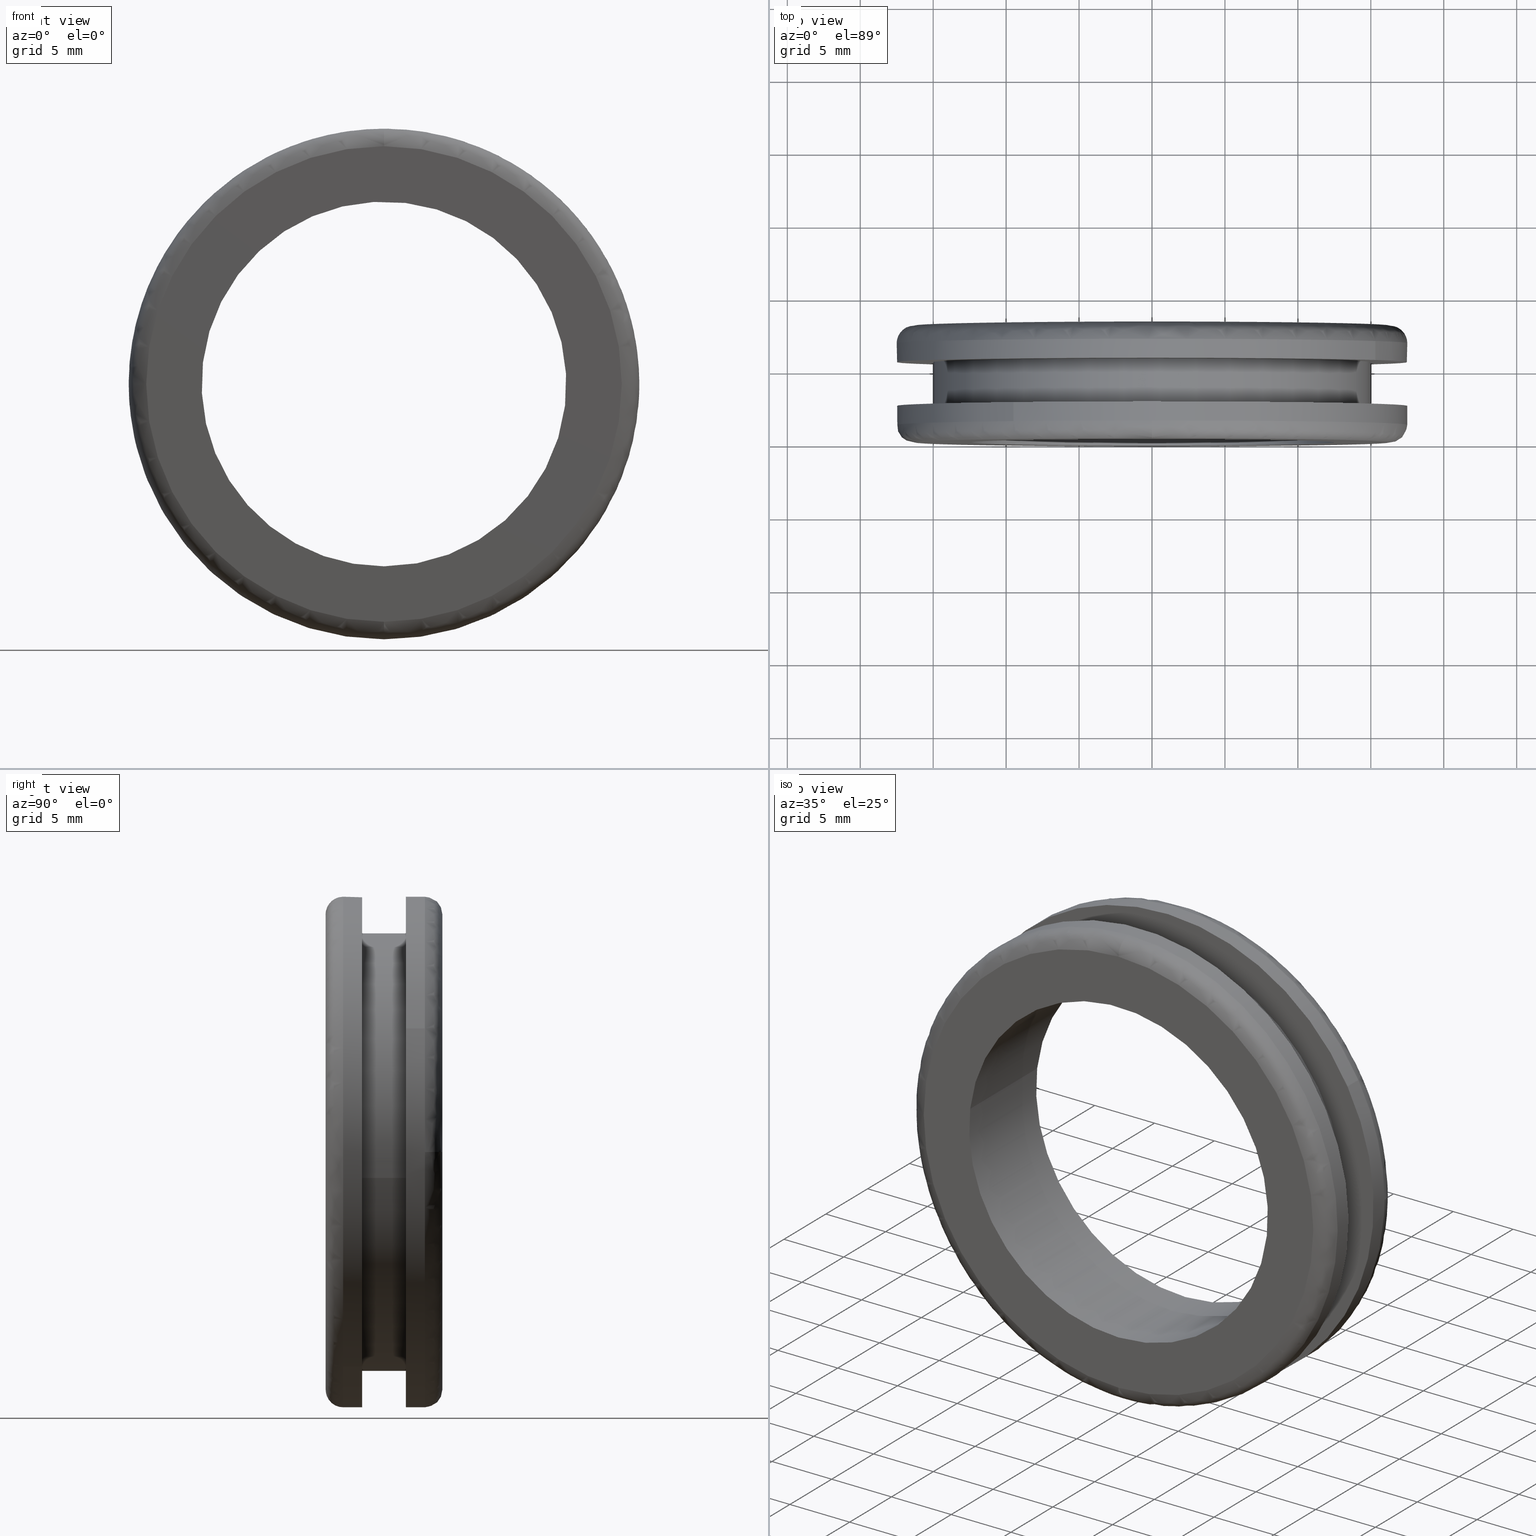
[diagram: canonical four-view strip — front | top / right | iso, engineering-drawing reading convention]
A machine part, canonical four-view strip (front | top / right | iso — engineering-drawing reading convention). The complete STEP part file that produces these views, byte-faithful:
ISO-10303-21;
HEADER;

FILE_DESCRIPTION( (''), '2;1');
FILE_NAME ('PC14.7972.TM_NG_79_Q_CRUL_31448.stp','2019-12-12T16:46:07',(''),(''),'spGate 15.6.1','','');

FILE_SCHEMA (('AUTOMOTIVE_DESIGN'));
ENDSEC;

DATA;
#10=(GEOMETRIC_REPRESENTATION_CONTEXT(3) GLOBAL_UNCERTAINTY_ASSIGNED_CONTEXT((#11)) GLOBAL_UNIT_ASSIGNED_CONTEXT((#12,#13,#14)) REPRESENTATION_CONTEXT('ID1','3D'));
#11=UNCERTAINTY_MEASURE_WITH_UNIT(LENGTH_MEASURE(0.01),#15,'DISTANCE_ACCURACY_VALUE','Maximum model space distance between geometric entities at asserted connectivities');
#12=(NAMED_UNIT(*) SI_UNIT($,.STERADIAN.) SOLID_ANGLE_UNIT());
#13=(CONVERSION_BASED_UNIT('DEGREE',#16) NAMED_UNIT(#17) PLANE_ANGLE_UNIT());
#14=(LENGTH_UNIT() NAMED_UNIT(*) SI_UNIT(.MILLI.,.METRE.));
#15=(LENGTH_UNIT() NAMED_UNIT(*) SI_UNIT(.MILLI.,.METRE.));
#16=PLANE_ANGLE_MEASURE_WITH_UNIT(PLANE_ANGLE_MEASURE(0.01745329252),#18);
#17=DIMENSIONAL_EXPONENTS(0.0,0.0,0.0,0.0,0.0,0.0,0.0);
#18=(NAMED_UNIT(*) PLANE_ANGLE_UNIT() SI_UNIT($,.RADIAN.));
#19=MANIFOLD_SOLID_BREP('TM_NG_79_Q_CRUL',#31);
#20=ADVANCED_BREP_SHAPE_REPRESENTATION('',(#19),#10);
#21=APPLICATION_CONTEXT('');
#22=APPLICATION_PROTOCOL_DEFINITION('International Standard','automotive_design',1999,#21);
#23=PRODUCT_DEFINITION_CONTEXT('',#21,'design');
#24=PRODUCT_CONTEXT('',#21,'mechanical');
#25=PRODUCT('','','',(#24));
#26=PRODUCT_DEFINITION_FORMATION_WITH_SPECIFIED_SOURCE('','',#25,.NOT_KNOWN.);
#27=PRODUCT_RELATED_PRODUCT_CATEGORY('tool','tool',(#25));
#28=PRODUCT_DEFINITION('','',#26,#23);
#29=PRODUCT_DEFINITION_SHAPE('','',#28);
#30=SHAPE_DEFINITION_REPRESENTATION(#29,#20);
#31=CLOSED_SHELL('',(#40,#41,#42,#43,#44,#45,#46,#47,#48,#49,#50,#51,#52,#53,#54,#55));
#32=COLOUR_RGB('',0.00000000000E+000,0.00000000000E+000,0.00000000000E+000);
#33=FILL_AREA_STYLE_COLOUR('',#32);
#34=FILL_AREA_STYLE('',(#33));
#35=SURFACE_STYLE_FILL_AREA(#34);
#36=SURFACE_SIDE_STYLE('',(#35));
#37=SURFACE_STYLE_USAGE(.BOTH.,#36);
#38=PRESENTATION_STYLE_ASSIGNMENT((#37));
#39=STYLED_ITEM('',(#38),#19);
#40=ADVANCED_FACE('',(#57,#58),#56,.F.);
#41=ADVANCED_FACE('',(#68,#69),#67,.F.);
#42=ADVANCED_FACE('',(#79,#80),#78,.F.);
#43=ADVANCED_FACE('',(#90,#91),#89,.F.);
#44=ADVANCED_FACE('',(#101),#100,.T.);
#45=ADVANCED_FACE('',(#111),#110,.T.);
#46=ADVANCED_FACE('',(#121),#120,.T.);
#47=ADVANCED_FACE('',(#131),#130,.T.);
#48=ADVANCED_FACE('',(#141),#140,.T.);
#49=ADVANCED_FACE('',(#151),#150,.T.);
#50=ADVANCED_FACE('',(#161),#160,.T.);
#51=ADVANCED_FACE('',(#171),#170,.T.);
#52=ADVANCED_FACE('',(#181),#180,.F.);
#53=ADVANCED_FACE('',(#191),#190,.F.);
#54=ADVANCED_FACE('',(#201),#200,.T.);
#55=ADVANCED_FACE('',(#211),#210,.T.);
#56=PLANE('',#223);
#57=FACE_OUTER_BOUND('',#224,.T.);
#58=FACE_BOUND('',#225,.T.);
#59=COLOUR_RGB('',1.00000000000E+000,1.00000000000E+000,1.00000000000E+000);
#60=FILL_AREA_STYLE_COLOUR('',#59);
#61=FILL_AREA_STYLE('',(#60));
#62=SURFACE_STYLE_FILL_AREA(#61);
#63=SURFACE_SIDE_STYLE('',(#62));
#64=SURFACE_STYLE_USAGE(.BOTH.,#63);
#65=PRESENTATION_STYLE_ASSIGNMENT((#64));
#66=STYLED_ITEM('',(#65),#40);
#67=PLANE('',#229);
#68=FACE_OUTER_BOUND('',#230,.T.);
#69=FACE_BOUND('',#231,.T.);
#70=COLOUR_RGB('',1.00000000000E+000,1.00000000000E+000,1.00000000000E+000);
#71=FILL_AREA_STYLE_COLOUR('',#70);
#72=FILL_AREA_STYLE('',(#71));
#73=SURFACE_STYLE_FILL_AREA(#72);
#74=SURFACE_SIDE_STYLE('',(#73));
#75=SURFACE_STYLE_USAGE(.BOTH.,#74);
#76=PRESENTATION_STYLE_ASSIGNMENT((#75));
#77=STYLED_ITEM('',(#76),#41);
#78=PLANE('',#235);
#79=FACE_OUTER_BOUND('',#236,.T.);
#80=FACE_BOUND('',#237,.T.);
#81=COLOUR_RGB('',1.00000000000E+000,1.00000000000E+000,1.00000000000E+000);
#82=FILL_AREA_STYLE_COLOUR('',#81);
#83=FILL_AREA_STYLE('',(#82));
#84=SURFACE_STYLE_FILL_AREA(#83);
#85=SURFACE_SIDE_STYLE('',(#84));
#86=SURFACE_STYLE_USAGE(.BOTH.,#85);
#87=PRESENTATION_STYLE_ASSIGNMENT((#86));
#88=STYLED_ITEM('',(#87),#42);
#89=PLANE('',#241);
#90=FACE_OUTER_BOUND('',#242,.T.);
#91=FACE_BOUND('',#243,.T.);
#92=COLOUR_RGB('',1.00000000000E+000,1.00000000000E+000,1.00000000000E+000);
#93=FILL_AREA_STYLE_COLOUR('',#92);
#94=FILL_AREA_STYLE('',(#93));
#95=SURFACE_STYLE_FILL_AREA(#94);
#96=SURFACE_SIDE_STYLE('',(#95));
#97=SURFACE_STYLE_USAGE(.BOTH.,#96);
#98=PRESENTATION_STYLE_ASSIGNMENT((#97));
#99=STYLED_ITEM('',(#98),#43);
#100=CYLINDRICAL_SURFACE('',#247,1.50000000000E+001);
#101=FACE_OUTER_BOUND('',#248,.T.);
#102=COLOUR_RGB('',1.00000000000E+000,1.00000000000E+000,1.00000000000E+000);
#103=FILL_AREA_STYLE_COLOUR('',#102);
#104=FILL_AREA_STYLE('',(#103));
#105=SURFACE_STYLE_FILL_AREA(#104);
#106=SURFACE_SIDE_STYLE('',(#105));
#107=SURFACE_STYLE_USAGE(.BOTH.,#106);
#108=PRESENTATION_STYLE_ASSIGNMENT((#107));
#109=STYLED_ITEM('',(#108),#44);
#110=CYLINDRICAL_SURFACE('',#252,1.50000000000E+001);
#111=FACE_OUTER_BOUND('',#253,.T.);
#112=COLOUR_RGB('',1.00000000000E+000,1.00000000000E+000,1.00000000000E+000);
#113=FILL_AREA_STYLE_COLOUR('',#112);
#114=FILL_AREA_STYLE('',(#113));
#115=SURFACE_STYLE_FILL_AREA(#114);
#116=SURFACE_SIDE_STYLE('',(#115));
#117=SURFACE_STYLE_USAGE(.BOTH.,#116);
#118=PRESENTATION_STYLE_ASSIGNMENT((#117));
#119=STYLED_ITEM('',(#118),#45);
#120=CYLINDRICAL_SURFACE('',#257,1.75000000000E+001);
#121=FACE_OUTER_BOUND('',#258,.T.);
#122=COLOUR_RGB('',1.00000000000E+000,1.00000000000E+000,1.00000000000E+000);
#123=FILL_AREA_STYLE_COLOUR('',#122);
#124=FILL_AREA_STYLE('',(#123));
#125=SURFACE_STYLE_FILL_AREA(#124);
#126=SURFACE_SIDE_STYLE('',(#125));
#127=SURFACE_STYLE_USAGE(.BOTH.,#126);
#128=PRESENTATION_STYLE_ASSIGNMENT((#127));
#129=STYLED_ITEM('',(#128),#46);
#130=CYLINDRICAL_SURFACE('',#262,1.75000000000E+001);
#131=FACE_OUTER_BOUND('',#263,.T.);
#132=COLOUR_RGB('',1.00000000000E+000,1.00000000000E+000,1.00000000000E+000);
#133=FILL_AREA_STYLE_COLOUR('',#132);
#134=FILL_AREA_STYLE('',(#133));
#135=SURFACE_STYLE_FILL_AREA(#134);
#136=SURFACE_SIDE_STYLE('',(#135));
#137=SURFACE_STYLE_USAGE(.BOTH.,#136);
#138=PRESENTATION_STYLE_ASSIGNMENT((#137));
#139=STYLED_ITEM('',(#138),#47);
#140=( BOUNDED_SURFACE() B_SPLINE_SURFACE( 2,2,((#264,#265,#266,#267,#268),(#269,#270,#271,#272,#273),(#274,#275,#276,#277,#278),(#279,#280,#281,#282,#283),(#284,#285,#286,#287,#288)), .UNSPECIFIED.,.F.,.F.,.F.) B_SPLINE_SURFACE_WITH_KNOTS((3,2,3),(3,2,3),(0.00000000000E+000,5.00000000000E-001,1.00000000000E+000),(0.00000000000E+000,5.00000000000E-001,1.00000000000E+000), .UNSPECIFIED. ) GEOMETRIC_REPRESENTATION_ITEM() RATIONAL_B_SPLINE_SURFACE(((1.00000000000E+000,7.07106780756E-001,1.00000000000E+000,7.07106780756E-001,1.00000000000E+000),(7.07106781187E-001,4.99999999696E-001,7.07106781187E-001,4.99999999696E-001,7.07106781187E-001),(1.00000000000E+000,7.07106780756E-001,1.00000000000E+000,7.07106780756E-001,1.00000000000E+000),(7.07106781187E-001,4.99999999696E-001,7.07106781187E-001,4.99999999696E-001,7.07106781187E-001),(1.00000000000E+000,7.07106780756E-001,1.00000000000E+000,7.07106780756E-001,1.00000000000E+000))) REPRESENTATION_ITEM('') SURFACE() );
#141=FACE_OUTER_BOUND('',#289,.T.);
#142=COLOUR_RGB('',1.00000000000E+000,1.00000000000E+000,1.00000000000E+000);
#143=FILL_AREA_STYLE_COLOUR('',#142);
#144=FILL_AREA_STYLE('',(#143));
#145=SURFACE_STYLE_FILL_AREA(#144);
#146=SURFACE_SIDE_STYLE('',(#145));
#147=SURFACE_STYLE_USAGE(.BOTH.,#146);
#148=PRESENTATION_STYLE_ASSIGNMENT((#147));
#149=STYLED_ITEM('',(#148),#48);
#150=( BOUNDED_SURFACE() B_SPLINE_SURFACE( 2,2,((#290,#291,#292,#293,#294),(#295,#296,#297,#298,#299),(#300,#301,#302,#303,#304),(#305,#306,#307,#308,#309),(#310,#311,#312,#313,#314)), .UNSPECIFIED.,.F.,.F.,.F.) B_SPLINE_SURFACE_WITH_KNOTS((3,2,3),(3,2,3),(0.00000000000E+000,5.00000000000E-001,1.00000000000E+000),(0.00000000000E+000,5.00000000000E-001,1.00000000000E+000), .UNSPECIFIED. ) GEOMETRIC_REPRESENTATION_ITEM() RATIONAL_B_SPLINE_SURFACE(((1.00000000000E+000,7.07106780756E-001,1.00000000000E+000,7.07106780756E-001,1.00000000000E+000),(7.07106781187E-001,4.99999999696E-001,7.07106781187E-001,4.99999999696E-001,7.07106781187E-001),(1.00000000000E+000,7.07106780756E-001,1.00000000000E+000,7.07106780756E-001,1.00000000000E+000),(7.07106781187E-001,4.99999999696E-001,7.07106781187E-001,4.99999999696E-001,7.07106781187E-001),(1.00000000000E+000,7.07106780756E-001,1.00000000000E+000,7.07106780756E-001,1.00000000000E+000))) REPRESENTATION_ITEM('') SURFACE() );
#151=FACE_OUTER_BOUND('',#315,.T.);
#152=COLOUR_RGB('',1.00000000000E+000,1.00000000000E+000,1.00000000000E+000);
#153=FILL_AREA_STYLE_COLOUR('',#152);
#154=FILL_AREA_STYLE('',(#153));
#155=SURFACE_STYLE_FILL_AREA(#154);
#156=SURFACE_SIDE_STYLE('',(#155));
#157=SURFACE_STYLE_USAGE(.BOTH.,#156);
#158=PRESENTATION_STYLE_ASSIGNMENT((#157));
#159=STYLED_ITEM('',(#158),#49);
#160=( BOUNDED_SURFACE() B_SPLINE_SURFACE( 2,2,((#316,#317,#318,#319,#320),(#321,#322,#323,#324,#325),(#326,#327,#328,#329,#330),(#331,#332,#333,#334,#335),(#336,#337,#338,#339,#340)), .UNSPECIFIED.,.F.,.F.,.F.) B_SPLINE_SURFACE_WITH_KNOTS((3,2,3),(3,2,3),(0.00000000000E+000,5.00000000000E-001,1.00000000000E+000),(0.00000000000E+000,5.00000000000E-001,1.00000000000E+000), .UNSPECIFIED. ) GEOMETRIC_REPRESENTATION_ITEM() RATIONAL_B_SPLINE_SURFACE(((1.00000000000E+000,7.07106780105E-001,1.00000000000E+000,7.07106780105E-001,1.00000000000E+000),(7.07106781187E-001,4.99999999236E-001,7.07106781187E-001,4.99999999236E-001,7.07106781187E-001),(1.00000000000E+000,7.07106780105E-001,1.00000000000E+000,7.07106780105E-001,1.00000000000E+000),(7.07106781187E-001,4.99999999236E-001,7.07106781187E-001,4.99999999236E-001,7.07106781187E-001),(1.00000000000E+000,7.07106780105E-001,1.00000000000E+000,7.07106780105E-001,1.00000000000E+000))) REPRESENTATION_ITEM('') SURFACE() );
#161=FACE_OUTER_BOUND('',#341,.T.);
#162=COLOUR_RGB('',1.00000000000E+000,1.00000000000E+000,1.00000000000E+000);
#163=FILL_AREA_STYLE_COLOUR('',#162);
#164=FILL_AREA_STYLE('',(#163));
#165=SURFACE_STYLE_FILL_AREA(#164);
#166=SURFACE_SIDE_STYLE('',(#165));
#167=SURFACE_STYLE_USAGE(.BOTH.,#166);
#168=PRESENTATION_STYLE_ASSIGNMENT((#167));
#169=STYLED_ITEM('',(#168),#50);
#170=( BOUNDED_SURFACE() B_SPLINE_SURFACE( 2,2,((#342,#343,#344,#345,#346),(#347,#348,#349,#350,#351),(#352,#353,#354,#355,#356),(#357,#358,#359,#360,#361),(#362,#363,#364,#365,#366)), .UNSPECIFIED.,.F.,.F.,.F.) B_SPLINE_SURFACE_WITH_KNOTS((3,2,3),(3,2,3),(0.00000000000E+000,5.00000000000E-001,1.00000000000E+000),(0.00000000000E+000,5.00000000000E-001,1.00000000000E+000), .UNSPECIFIED. ) GEOMETRIC_REPRESENTATION_ITEM() RATIONAL_B_SPLINE_SURFACE(((1.00000000000E+000,7.07106780105E-001,1.00000000000E+000,7.07106780105E-001,1.00000000000E+000),(7.07106781187E-001,4.99999999236E-001,7.07106781187E-001,4.99999999236E-001,7.07106781187E-001),(1.00000000000E+000,7.07106780105E-001,1.00000000000E+000,7.07106780105E-001,1.00000000000E+000),(7.07106781187E-001,4.99999999236E-001,7.07106781187E-001,4.99999999236E-001,7.07106781187E-001),(1.00000000000E+000,7.07106780105E-001,1.00000000000E+000,7.07106780105E-001,1.00000000000E+000))) REPRESENTATION_ITEM('') SURFACE() );
#171=FACE_OUTER_BOUND('',#367,.T.);
#172=COLOUR_RGB('',1.00000000000E+000,1.00000000000E+000,1.00000000000E+000);
#173=FILL_AREA_STYLE_COLOUR('',#172);
#174=FILL_AREA_STYLE('',(#173));
#175=SURFACE_STYLE_FILL_AREA(#174);
#176=SURFACE_SIDE_STYLE('',(#175));
#177=SURFACE_STYLE_USAGE(.BOTH.,#176);
#178=PRESENTATION_STYLE_ASSIGNMENT((#177));
#179=STYLED_ITEM('',(#178),#51);
#180=CYLINDRICAL_SURFACE('',#371,1.25000000000E+001);
#181=FACE_OUTER_BOUND('',#372,.T.);
#182=COLOUR_RGB('',1.00000000000E+000,1.00000000000E+000,1.00000000000E+000);
#183=FILL_AREA_STYLE_COLOUR('',#182);
#184=FILL_AREA_STYLE('',(#183));
#185=SURFACE_STYLE_FILL_AREA(#184);
#186=SURFACE_SIDE_STYLE('',(#185));
#187=SURFACE_STYLE_USAGE(.BOTH.,#186);
#188=PRESENTATION_STYLE_ASSIGNMENT((#187));
#189=STYLED_ITEM('',(#188),#52);
#190=CYLINDRICAL_SURFACE('',#376,1.25000000000E+001);
#191=FACE_OUTER_BOUND('',#377,.T.);
#192=COLOUR_RGB('',1.00000000000E+000,1.00000000000E+000,1.00000000000E+000);
#193=FILL_AREA_STYLE_COLOUR('',#192);
#194=FILL_AREA_STYLE('',(#193));
#195=SURFACE_STYLE_FILL_AREA(#194);
#196=SURFACE_SIDE_STYLE('',(#195));
#197=SURFACE_STYLE_USAGE(.BOTH.,#196);
#198=PRESENTATION_STYLE_ASSIGNMENT((#197));
#199=STYLED_ITEM('',(#198),#53);
#200=CYLINDRICAL_SURFACE('',#381,1.75000000000E+001);
#201=FACE_OUTER_BOUND('',#382,.T.);
#202=COLOUR_RGB('',1.00000000000E+000,1.00000000000E+000,1.00000000000E+000);
#203=FILL_AREA_STYLE_COLOUR('',#202);
#204=FILL_AREA_STYLE('',(#203));
#205=SURFACE_STYLE_FILL_AREA(#204);
#206=SURFACE_SIDE_STYLE('',(#205));
#207=SURFACE_STYLE_USAGE(.BOTH.,#206);
#208=PRESENTATION_STYLE_ASSIGNMENT((#207));
#209=STYLED_ITEM('',(#208),#54);
#210=CYLINDRICAL_SURFACE('',#386,1.75000000000E+001);
#211=FACE_OUTER_BOUND('',#387,.T.);
#212=COLOUR_RGB('',1.00000000000E+000,1.00000000000E+000,1.00000000000E+000);
#213=FILL_AREA_STYLE_COLOUR('',#212);
#214=FILL_AREA_STYLE('',(#213));
#215=SURFACE_STYLE_FILL_AREA(#214);
#216=SURFACE_SIDE_STYLE('',(#215));
#217=SURFACE_STYLE_USAGE(.BOTH.,#216);
#218=PRESENTATION_STYLE_ASSIGNMENT((#217));
#219=STYLED_ITEM('',(#218),#55);
#220=CARTESIAN_POINT('',(-3.63730669589E+001,2.50000000000E+000,4.02500000000E+001));
#221=DIRECTION('',(0.00000000000E+000,-1.00000000000E+000,0.00000000000E+000));
#222=DIRECTION('',(0.00000000000E+000,0.00000000000E+000,-1.00000000000E+000));
#223=AXIS2_PLACEMENT_3D('',#220,#221,#222);
#224=EDGE_LOOP('',(#388,#389,#390));
#225=EDGE_LOOP('',(#391,#392,#393));
#226=CARTESIAN_POINT('',(-3.63730693493E+001,5.50000000000E+000,-2.27500034972E+001));
#227=DIRECTION('',(0.00000000000E+000,1.00000000000E+000,0.00000000000E+000));
#228=DIRECTION('',(0.00000000000E+000,0.00000000000E+000,1.00000000000E+000));
#229=AXIS2_PLACEMENT_3D('',#226,#227,#228);
#230=EDGE_LOOP('',(#394,#395,#396));
#231=EDGE_LOOP('',(#397,#398,#399));
#232=CARTESIAN_POINT('',(-3.38789137987E+001,8.00000000000E+000,3.74900000017E+001));
#233=DIRECTION('',(0.00000000000E+000,-1.00000000000E+000,0.00000000000E+000));
#234=DIRECTION('',(0.00000000000E+000,0.00000000000E+000,-1.00000000000E+000));
#235=AXIS2_PLACEMENT_3D('',#232,#233,#234);
#236=EDGE_LOOP('',(#400,#401,#402));
#237=EDGE_LOOP('',(#403,#404,#405));
#238=CARTESIAN_POINT('',(-3.38789137985E+001,-2.64515000000E-015,-3.74900000015E+001));
#239=DIRECTION('',(0.00000000000E+000,1.00000000000E+000,0.00000000000E+000));
#240=DIRECTION('',(0.00000000000E+000,0.00000000000E+000,1.00000000000E+000));
#241=AXIS2_PLACEMENT_3D('',#238,#239,#240);
#242=EDGE_LOOP('',(#406,#407));
#243=EDGE_LOOP('',(#408,#409,#410));
#244=CARTESIAN_POINT('',(-2.04937555702E-015,5.57500000000E+000,1.38179831511E-015));
#245=DIRECTION('',(9.53424932889E-017,1.00000000000E+000,1.05293139561E-015));
#246=DIRECTION('',(-9.93009526364E-001,-2.96059473233E-017,1.18034234657E-001));
#247=AXIS2_PLACEMENT_3D('',#244,#245,#246);
#248=EDGE_LOOP('',(#411,#412,#413,#414));
#249=CARTESIAN_POINT('',(-2.04937555702E-015,5.57500000000E+000,1.38179831511E-015));
#250=DIRECTION('',(9.53424932889E-017,1.00000000000E+000,1.05293139561E-015));
#251=DIRECTION('',(-9.93009526364E-001,-2.96059473233E-017,1.18034234657E-001));
#252=AXIS2_PLACEMENT_3D('',#249,#250,#251);
#253=EDGE_LOOP('',(#415,#416,#417,#418,#419,#420));
#254=CARTESIAN_POINT('',(-2.60738374030E-015,2.53250000000E+000,1.50569380069E-015));
#255=DIRECTION('',(-5.66604407316E-016,1.00000000000E+000,-3.96339964228E-016));
#256=DIRECTION('',(-5.42728861529E-001,2.53765262771E-017,8.39907960948E-001));
#257=AXIS2_PLACEMENT_3D('',#254,#255,#256);
#258=EDGE_LOOP('',(#421,#422,#423,#424,#425,#426));
#259=CARTESIAN_POINT('',(-2.60738374030E-015,2.53250000000E+000,1.50569380069E-015));
#260=DIRECTION('',(-5.66604407316E-016,1.00000000000E+000,-3.96339964228E-016));
#261=DIRECTION('',(-5.42728861529E-001,2.53765262771E-017,8.39907960948E-001));
#262=AXIS2_PLACEMENT_3D('',#259,#260,#261);
#263=EDGE_LOOP('',(#427,#428,#429,#430,#431,#432,#433,#434));
#264=CARTESIAN_POINT('',(-1.51000000000E+001,6.79999999709E+000,3.14304197921E-013));
#265=CARTESIAN_POINT('',(-1.50999999971E+001,7.99999999855E+000,3.06864412889E-013));
#266=CARTESIAN_POINT('',(-1.62999999985E+001,8.00000000001E+000,3.06717460117E-013));
#267=CARTESIAN_POINT('',(-1.75000000000E+001,8.00000000147E+000,3.06570507345E-013));
#268=CARTESIAN_POINT('',(-1.75000000000E+001,6.80000000001E+000,3.14010292378E-013));
#269=CARTESIAN_POINT('',(-1.51000000000E+001,6.79999999709E+000,-1.51000000000E+001));
#270=CARTESIAN_POINT('',(-1.50999999971E+001,7.99999999855E+000,-1.50999999971E+001));
#271=CARTESIAN_POINT('',(-1.62999999985E+001,8.00000000001E+000,-1.62999999985E+001));
#272=CARTESIAN_POINT('',(-1.75000000000E+001,8.00000000147E+000,-1.75000000000E+001));
#273=CARTESIAN_POINT('',(-1.75000000000E+001,6.80000000001E+000,-1.75000000000E+001));
#274=CARTESIAN_POINT('',(-4.74527888358E-012,6.79999999708E+000,-1.51000000000E+001));
#275=CARTESIAN_POINT('',(-4.51020794608E-012,7.99999999854E+000,-1.50999999971E+001));
#276=CARTESIAN_POINT('',(-4.51013447184E-012,8.00000000000E+000,-1.62999999985E+001));
#277=CARTESIAN_POINT('',(-4.51006099760E-012,8.00000000146E+000,-1.75000000000E+001));
#278=CARTESIAN_POINT('',(-4.74513193510E-012,6.80000000000E+000,-1.75000000000E+001));
#279=CARTESIAN_POINT('',(1.51000000000E+001,6.79999999708E+000,-1.51000000000E+001));
#280=CARTESIAN_POINT('',(1.50999999971E+001,7.99999999854E+000,-1.50999999971E+001));
#281=CARTESIAN_POINT('',(1.62999999985E+001,8.00000000000E+000,-1.62999999985E+001));
#282=CARTESIAN_POINT('',(1.75000000000E+001,8.00000000146E+000,-1.75000000000E+001));
#283=CARTESIAN_POINT('',(1.75000000000E+001,6.80000000000E+000,-1.75000000000E+001));
#284=CARTESIAN_POINT('',(1.51000000000E+001,6.79999999708E+000,3.16153292442E-013));
#285=CARTESIAN_POINT('',(1.50999999971E+001,7.99999999854E+000,3.08713507410E-013));
#286=CARTESIAN_POINT('',(1.62999999985E+001,8.00000000000E+000,3.08713502548E-013));
#287=CARTESIAN_POINT('',(1.75000000000E+001,8.00000000146E+000,3.08713497685E-013));
#288=CARTESIAN_POINT('',(1.75000000000E+001,6.80000000000E+000,3.16153282717E-013));
#289=EDGE_LOOP('',(#435,#436,#437,#438,#439,#440,#441,#442));
#290=CARTESIAN_POINT('',(1.51000000000E+001,6.79999999708E+000,3.16153292442E-013));
#291=CARTESIAN_POINT('',(1.50999999971E+001,7.99999999854E+000,3.08713507410E-013));
#292=CARTESIAN_POINT('',(1.62999999985E+001,8.00000000000E+000,3.08713502548E-013));
#293=CARTESIAN_POINT('',(1.75000000000E+001,8.00000000146E+000,3.08713497685E-013));
#294=CARTESIAN_POINT('',(1.75000000000E+001,6.80000000000E+000,3.16153282717E-013));
#295=CARTESIAN_POINT('',(1.51000000000E+001,6.79999999708E+000,1.51000000000E+001));
#296=CARTESIAN_POINT('',(1.50999999971E+001,7.99999999854E+000,1.50999999971E+001));
#297=CARTESIAN_POINT('',(1.62999999985E+001,8.00000000000E+000,1.62999999985E+001));
#298=CARTESIAN_POINT('',(1.75000000000E+001,8.00000000146E+000,1.75000000000E+001));
#299=CARTESIAN_POINT('',(1.75000000000E+001,6.80000000000E+000,1.75000000000E+001));
#300=CARTESIAN_POINT('',(-4.74527876144E-012,6.79999999708E+000,1.51000000000E+001));
#301=CARTESIAN_POINT('',(-4.51020782393E-012,7.99999999854E+000,1.50999999971E+001));
#302=CARTESIAN_POINT('',(-4.51013433999E-012,8.00000000000E+000,1.62999999985E+001));
#303=CARTESIAN_POINT('',(-4.51006085604E-012,8.00000000146E+000,1.75000000000E+001));
#304=CARTESIAN_POINT('',(-4.74513179354E-012,6.80000000000E+000,1.75000000000E+001));
#305=CARTESIAN_POINT('',(-1.51000000000E+001,6.79999999709E+000,1.51000000000E+001));
#306=CARTESIAN_POINT('',(-1.50999999971E+001,7.99999999855E+000,1.50999999971E+001));
#307=CARTESIAN_POINT('',(-1.62999999985E+001,8.00000000001E+000,1.62999999985E+001));
#308=CARTESIAN_POINT('',(-1.75000000000E+001,8.00000000147E+000,1.75000000000E+001));
#309=CARTESIAN_POINT('',(-1.75000000000E+001,6.80000000001E+000,1.75000000000E+001));
#310=CARTESIAN_POINT('',(-1.51000000000E+001,6.79999999709E+000,3.18002631254E-013));
#311=CARTESIAN_POINT('',(-1.50999999971E+001,7.99999999855E+000,3.10562846222E-013));
#312=CARTESIAN_POINT('',(-1.62999999985E+001,8.00000000001E+000,3.10709808682E-013));
#313=CARTESIAN_POINT('',(-1.75000000000E+001,8.00000000147E+000,3.10856771142E-013));
#314=CARTESIAN_POINT('',(-1.75000000000E+001,6.80000000001E+000,3.18296556175E-013));
#315=EDGE_LOOP('',(#443,#444,#445,#446,#447,#448));
#316=CARTESIAN_POINT('',(-2.18442519390E-012,1.20000000000E+000,1.75000000000E+001));
#317=CARTESIAN_POINT('',(-2.18442519390E-012,-3.66922035451E-009,1.75000000000E+001));
#318=CARTESIAN_POINT('',(-2.18427824114E-012,1.08801856413E-014,1.62999999963E+001));
#319=CARTESIAN_POINT('',(-2.18413128837E-012,3.66924217879E-009,1.50999999927E+001));
#320=CARTESIAN_POINT('',(-2.18413128837E-012,1.20000000734E+000,1.51000000000E+001));
#321=CARTESIAN_POINT('',(-1.75000000000E+001,1.20000000000E+000,1.75000000000E+001));
#322=CARTESIAN_POINT('',(-1.75000000000E+001,-3.66922035451E-009,1.75000000000E+001));
#323=CARTESIAN_POINT('',(-1.62999999963E+001,1.08801856413E-014,1.62999999963E+001));
#324=CARTESIAN_POINT('',(-1.50999999927E+001,3.66924217879E-009,1.50999999927E+001));
#325=CARTESIAN_POINT('',(-1.51000000000E+001,1.20000000734E+000,1.51000000000E+001));
#326=CARTESIAN_POINT('',(-1.75000000000E+001,1.20000000000E+000,5.11870495439E-014));
#327=CARTESIAN_POINT('',(-1.75000000000E+001,-3.66922035451E-009,5.11870495439E-014));
#328=CARTESIAN_POINT('',(-1.62999999963E+001,1.08801856413E-014,5.12605234986E-014));
#329=CARTESIAN_POINT('',(-1.50999999927E+001,3.66924217879E-009,5.13339974533E-014));
#330=CARTESIAN_POINT('',(-1.51000000000E+001,1.20000000734E+000,5.13339974529E-014));
#331=CARTESIAN_POINT('',(-1.75000000000E+001,1.20000000000E+000,-1.75000000000E+001));
#332=CARTESIAN_POINT('',(-1.75000000000E+001,-3.66922035451E-009,-1.75000000000E+001));
#333=CARTESIAN_POINT('',(-1.62999999963E+001,1.08801856413E-014,-1.62999999963E+001));
#334=CARTESIAN_POINT('',(-1.50999999927E+001,3.66924217879E-009,-1.50999999927E+001));
#335=CARTESIAN_POINT('',(-1.51000000000E+001,1.20000000734E+000,-1.51000000000E+001));
#336=CARTESIAN_POINT('',(-2.18228220356E-012,1.20000000000E+000,-1.75000000000E+001));
#337=CARTESIAN_POINT('',(-2.18228220356E-012,-3.66922035451E-009,-1.75000000000E+001));
#338=CARTESIAN_POINT('',(-2.18228219870E-012,1.08801856413E-014,-1.62999999963E+001));
#339=CARTESIAN_POINT('',(-2.18228219385E-012,3.66924217879E-009,-1.50999999927E+001));
#340=CARTESIAN_POINT('',(-2.18228219385E-012,1.20000000734E+000,-1.51000000000E+001));
#341=EDGE_LOOP('',(#449,#450,#451,#452,#453,#454,#455));
#342=CARTESIAN_POINT('',(-2.18228220356E-012,1.20000000000E+000,-1.75000000000E+001));
#343=CARTESIAN_POINT('',(-2.18228220356E-012,-3.66922035451E-009,-1.75000000000E+001));
#344=CARTESIAN_POINT('',(-2.18228219870E-012,1.08801856413E-014,-1.62999999963E+001));
#345=CARTESIAN_POINT('',(-2.18228219385E-012,3.66924217879E-009,-1.50999999927E+001));
#346=CARTESIAN_POINT('',(-2.18228219385E-012,1.20000000734E+000,-1.51000000000E+001));
#347=CARTESIAN_POINT('',(1.75000000000E+001,1.20000000000E+000,-1.75000000000E+001));
#348=CARTESIAN_POINT('',(1.75000000000E+001,-3.66922035451E-009,-1.75000000000E+001));
#349=CARTESIAN_POINT('',(1.62999999963E+001,1.08801856413E-014,-1.62999999963E+001));
#350=CARTESIAN_POINT('',(1.50999999927E+001,3.66924217879E-009,-1.50999999927E+001));
#351=CARTESIAN_POINT('',(1.51000000000E+001,1.20000000734E+000,-1.51000000000E+001));
#352=CARTESIAN_POINT('',(1.75000000000E+001,1.20000000000E+000,5.11869079852E-014));
#353=CARTESIAN_POINT('',(1.75000000000E+001,-3.66922035451E-009,5.11869079852E-014));
#354=CARTESIAN_POINT('',(1.62999999963E+001,1.08801856413E-014,5.12603916468E-014));
#355=CARTESIAN_POINT('',(1.50999999927E+001,3.66924217879E-009,5.13338753085E-014));
#356=CARTESIAN_POINT('',(1.51000000000E+001,1.20000000734E+000,5.13338753080E-014));
#357=CARTESIAN_POINT('',(1.75000000000E+001,1.20000000000E+000,1.75000000000E+001));
#358=CARTESIAN_POINT('',(1.75000000000E+001,-3.66922035451E-009,1.75000000000E+001));
#359=CARTESIAN_POINT('',(1.62999999963E+001,1.08801856413E-014,1.62999999963E+001));
#360=CARTESIAN_POINT('',(1.50999999927E+001,3.66924217879E-009,1.50999999927E+001));
#361=CARTESIAN_POINT('',(1.51000000000E+001,1.20000000734E+000,1.51000000000E+001));
#362=CARTESIAN_POINT('',(-2.18013893010E-012,1.20000000000E+000,1.75000000000E+001));
#363=CARTESIAN_POINT('',(-2.18013893010E-012,-3.66922035451E-009,1.75000000000E+001));
#364=CARTESIAN_POINT('',(-2.18028589257E-012,1.08801856413E-014,1.62999999963E+001));
#365=CARTESIAN_POINT('',(-2.18043285504E-012,3.66924217879E-009,1.50999999927E+001));
#366=CARTESIAN_POINT('',(-2.18043285504E-012,1.20000000734E+000,1.51000000000E+001));
#367=EDGE_LOOP('',(#456,#457,#458,#459,#460,#461));
#368=CARTESIAN_POINT('',(1.00183340316E-016,8.20000000000E+000,1.05282378509E-014));
#369=DIRECTION('',(2.69858068292E-016,1.00000000000E+000,2.57127747938E-015));
#370=DIRECTION('',(-9.93009526364E-001,-3.55271367880E-017,1.18034234657E-001));
#371=AXIS2_PLACEMENT_3D('',#368,#369,#370);
#372=EDGE_LOOP('',(#462,#463,#464,#465));
#373=CARTESIAN_POINT('',(1.00183340316E-016,8.20000000000E+000,1.05282378509E-014));
#374=DIRECTION('',(2.69858068292E-016,1.00000000000E+000,2.57127747938E-015));
#375=DIRECTION('',(-9.93009526364E-001,-3.55271367880E-017,1.18034234657E-001));
#376=AXIS2_PLACEMENT_3D('',#373,#374,#375);
#377=EDGE_LOOP('',(#466,#467,#468,#469,#470,#471));
#378=CARTESIAN_POINT('',(-9.04307677237E-016,6.83250000002E+000,1.24636421575E-014));
#379=DIRECTION('',(-2.36185531121E-017,1.00000000000E+000,4.26768412981E-017));
#380=DIRECTION('',(-8.74946427443E-001,-3.08148791102E-033,-4.84219732254E-001));
#381=AXIS2_PLACEMENT_3D('',#378,#379,#380);
#382=EDGE_LOOP('',(#472,#473,#474,#475,#476,#477));
#383=CARTESIAN_POINT('',(-9.04307677237E-016,6.83250000002E+000,1.24636421575E-014));
#384=DIRECTION('',(-2.36185531121E-017,1.00000000000E+000,4.26768412981E-017));
#385=DIRECTION('',(-8.74946427443E-001,-3.08148791102E-033,-4.84219732254E-001));
#386=AXIS2_PLACEMENT_3D('',#383,#384,#385);
#387=EDGE_LOOP('',(#478,#479,#480,#481,#482,#483,#484,#485));
#388=ORIENTED_EDGE('',*,*,#486,.F.);
#389=ORIENTED_EDGE('',*,*,#487,.F.);
#390=ORIENTED_EDGE('',*,*,#488,.F.);
#391=ORIENTED_EDGE('',*,*,#489,.T.);
#392=ORIENTED_EDGE('',*,*,#490,.T.);
#393=ORIENTED_EDGE('',*,*,#491,.T.);
#394=ORIENTED_EDGE('',*,*,#492,.T.);
#395=ORIENTED_EDGE('',*,*,#493,.T.);
#396=ORIENTED_EDGE('',*,*,#494,.T.);
#397=ORIENTED_EDGE('',*,*,#495,.F.);
#398=ORIENTED_EDGE('',*,*,#496,.F.);
#399=ORIENTED_EDGE('',*,*,#497,.F.);
#400=ORIENTED_EDGE('',*,*,#498,.F.);
#401=ORIENTED_EDGE('',*,*,#499,.F.);
#402=ORIENTED_EDGE('',*,*,#500,.F.);
#403=ORIENTED_EDGE('',*,*,#501,.T.);
#404=ORIENTED_EDGE('',*,*,#502,.T.);
#405=ORIENTED_EDGE('',*,*,#503,.T.);
#406=ORIENTED_EDGE('',*,*,#504,.T.);
#407=ORIENTED_EDGE('',*,*,#505,.T.);
#408=ORIENTED_EDGE('',*,*,#506,.F.);
#409=ORIENTED_EDGE('',*,*,#507,.F.);
#410=ORIENTED_EDGE('',*,*,#508,.F.);
#411=ORIENTED_EDGE('',*,*,#496,.T.);
#412=ORIENTED_EDGE('',*,*,#509,.F.);
#413=ORIENTED_EDGE('',*,*,#490,.F.);
#414=ORIENTED_EDGE('',*,*,#510,.T.);
#415=ORIENTED_EDGE('',*,*,#489,.F.);
#416=ORIENTED_EDGE('',*,*,#491,.F.);
#417=ORIENTED_EDGE('',*,*,#509,.T.);
#418=ORIENTED_EDGE('',*,*,#495,.T.);
#419=ORIENTED_EDGE('',*,*,#497,.T.);
#420=ORIENTED_EDGE('',*,*,#510,.F.);
#421=ORIENTED_EDGE('',*,*,#487,.T.);
#422=ORIENTED_EDGE('',*,*,#511,.F.);
#423=ORIENTED_EDGE('',*,*,#512,.F.);
#424=ORIENTED_EDGE('',*,*,#513,.F.);
#425=ORIENTED_EDGE('',*,*,#514,.F.);
#426=ORIENTED_EDGE('',*,*,#515,.T.);
#427=ORIENTED_EDGE('',*,*,#516,.F.);
#428=ORIENTED_EDGE('',*,*,#517,.F.);
#429=ORIENTED_EDGE('',*,*,#518,.F.);
#430=ORIENTED_EDGE('',*,*,#519,.F.);
#431=ORIENTED_EDGE('',*,*,#511,.T.);
#432=ORIENTED_EDGE('',*,*,#486,.T.);
#433=ORIENTED_EDGE('',*,*,#488,.T.);
#434=ORIENTED_EDGE('',*,*,#515,.F.);
#435=ORIENTED_EDGE('',*,*,#520,.F.);
#436=ORIENTED_EDGE('',*,*,#521,.F.);
#437=ORIENTED_EDGE('',*,*,#522,.F.);
#438=ORIENTED_EDGE('',*,*,#523,.F.);
#439=ORIENTED_EDGE('',*,*,#524,.F.);
#440=ORIENTED_EDGE('',*,*,#498,.T.);
#441=ORIENTED_EDGE('',*,*,#500,.T.);
#442=ORIENTED_EDGE('',*,*,#525,.T.);
#443=ORIENTED_EDGE('',*,*,#499,.T.);
#444=ORIENTED_EDGE('',*,*,#524,.T.);
#445=ORIENTED_EDGE('',*,*,#526,.F.);
#446=ORIENTED_EDGE('',*,*,#527,.F.);
#447=ORIENTED_EDGE('',*,*,#528,.F.);
#448=ORIENTED_EDGE('',*,*,#525,.F.);
#449=ORIENTED_EDGE('',*,*,#504,.F.);
#450=ORIENTED_EDGE('',*,*,#529,.F.);
#451=ORIENTED_EDGE('',*,*,#512,.T.);
#452=ORIENTED_EDGE('',*,*,#519,.T.);
#453=ORIENTED_EDGE('',*,*,#518,.T.);
#454=ORIENTED_EDGE('',*,*,#517,.T.);
#455=ORIENTED_EDGE('',*,*,#530,.T.);
#456=ORIENTED_EDGE('',*,*,#516,.T.);
#457=ORIENTED_EDGE('',*,*,#514,.T.);
#458=ORIENTED_EDGE('',*,*,#513,.T.);
#459=ORIENTED_EDGE('',*,*,#529,.T.);
#460=ORIENTED_EDGE('',*,*,#505,.F.);
#461=ORIENTED_EDGE('',*,*,#530,.F.);
#462=ORIENTED_EDGE('',*,*,#507,.T.);
#463=ORIENTED_EDGE('',*,*,#531,.T.);
#464=ORIENTED_EDGE('',*,*,#502,.F.);
#465=ORIENTED_EDGE('',*,*,#532,.F.);
#466=ORIENTED_EDGE('',*,*,#501,.F.);
#467=ORIENTED_EDGE('',*,*,#503,.F.);
#468=ORIENTED_EDGE('',*,*,#531,.F.);
#469=ORIENTED_EDGE('',*,*,#506,.T.);
#470=ORIENTED_EDGE('',*,*,#508,.T.);
#471=ORIENTED_EDGE('',*,*,#532,.T.);
#472=ORIENTED_EDGE('',*,*,#527,.T.);
#473=ORIENTED_EDGE('',*,*,#526,.T.);
#474=ORIENTED_EDGE('',*,*,#523,.T.);
#475=ORIENTED_EDGE('',*,*,#533,.F.);
#476=ORIENTED_EDGE('',*,*,#493,.F.);
#477=ORIENTED_EDGE('',*,*,#534,.T.);
#478=ORIENTED_EDGE('',*,*,#492,.F.);
#479=ORIENTED_EDGE('',*,*,#494,.F.);
#480=ORIENTED_EDGE('',*,*,#533,.T.);
#481=ORIENTED_EDGE('',*,*,#522,.T.);
#482=ORIENTED_EDGE('',*,*,#521,.T.);
#483=ORIENTED_EDGE('',*,*,#520,.T.);
#484=ORIENTED_EDGE('',*,*,#528,.T.);
#485=ORIENTED_EDGE('',*,*,#534,.F.);
#486=EDGE_CURVE('',#535,#536,#537,.T.);
#487=EDGE_CURVE('',#543,#535,#544,.T.);
#488=EDGE_CURVE('',#536,#543,#550,.T.);
#489=EDGE_CURVE('',#556,#557,#558,.T.);
#490=EDGE_CURVE('',#557,#564,#565,.T.);
#491=EDGE_CURVE('',#564,#556,#571,.T.);
#492=EDGE_CURVE('',#577,#578,#579,.T.);
#493=EDGE_CURVE('',#578,#585,#586,.T.);
#494=EDGE_CURVE('',#585,#577,#592,.T.);
#495=EDGE_CURVE('',#598,#599,#600,.T.);
#496=EDGE_CURVE('',#606,#598,#607,.T.);
#497=EDGE_CURVE('',#599,#606,#613,.T.);
#498=EDGE_CURVE('',#619,#620,#621,.T.);
#499=EDGE_CURVE('',#627,#619,#628,.T.);
#500=EDGE_CURVE('',#620,#627,#634,.T.);
#501=EDGE_CURVE('',#640,#641,#642,.T.);
#502=EDGE_CURVE('',#641,#648,#649,.T.);
#503=EDGE_CURVE('',#648,#640,#655,.T.);
#504=EDGE_CURVE('',#661,#662,#663,.T.);
#505=EDGE_CURVE('',#662,#661,#669,.T.);
#506=EDGE_CURVE('',#675,#676,#677,.T.);
#507=EDGE_CURVE('',#683,#675,#684,.T.);
#508=EDGE_CURVE('',#676,#683,#690,.T.);
#509=EDGE_CURVE('',#564,#598,#696,.T.);
#510=EDGE_CURVE('',#557,#606,#702,.T.);
#511=EDGE_CURVE('',#708,#535,#709,.T.);
#512=EDGE_CURVE('',#715,#708,#716,.T.);
#513=EDGE_CURVE('',#722,#715,#723,.T.);
#514=EDGE_CURVE('',#729,#722,#730,.T.);
#515=EDGE_CURVE('',#729,#543,#736,.T.);
#516=EDGE_CURVE('',#742,#729,#743,.T.);
#517=EDGE_CURVE('',#749,#742,#750,.T.);
#518=EDGE_CURVE('',#756,#749,#757,.T.);
#519=EDGE_CURVE('',#708,#756,#763,.T.);
#520=EDGE_CURVE('',#769,#770,#771,.T.);
#521=EDGE_CURVE('',#777,#769,#778,.T.);
#522=EDGE_CURVE('',#784,#777,#785,.T.);
#523=EDGE_CURVE('',#791,#784,#792,.T.);
#524=EDGE_CURVE('',#619,#791,#798,.T.);
#525=EDGE_CURVE('',#627,#770,#804,.T.);
#526=EDGE_CURVE('',#810,#791,#811,.T.);
#527=EDGE_CURVE('',#817,#810,#818,.T.);
#528=EDGE_CURVE('',#770,#817,#824,.T.);
#529=EDGE_CURVE('',#715,#661,#830,.T.);
#530=EDGE_CURVE('',#742,#662,#836,.T.);
#531=EDGE_CURVE('',#675,#648,#842,.T.);
#532=EDGE_CURVE('',#683,#641,#848,.T.);
#533=EDGE_CURVE('',#585,#784,#854,.T.);
#534=EDGE_CURVE('',#578,#817,#860,.T.);
#535=VERTEX_POINT('',#866);
#536=VERTEX_POINT('',#867);
#537=CIRCLE('',#871,1.75000000000E+001);
#538=COLOUR_RGB('',1.00000000000E+000,1.00000000000E+000,1.00000000000E+000);
#539=DRAUGHTING_PRE_DEFINED_CURVE_FONT('continuous');
#540=CURVE_STYLE( '',#539, POSITIVE_LENGTH_MEASURE(1.00000000000E-006),#538);
#541=PRESENTATION_STYLE_ASSIGNMENT((#540));
#542=STYLED_ITEM('',(#541),#486);
#543=VERTEX_POINT('',#872);
#544=(BOUNDED_CURVE() B_SPLINE_CURVE(2,(#873,#874,#875,#876,#877),.UNSPECIFIED.,.F.,.F.) B_SPLINE_CURVE_WITH_KNOTS((3,2,3),(0.00000000000E+000,5.00000000000E-001,1.00000000000E+000),.UNSPECIFIED.) CURVE() GEOMETRIC_REPRESENTATION_ITEM() RATIONAL_B_SPLINE_CURVE((1.00000000000E+000,7.07160008278E-001,1.00000000000E+000,7.07160008278E-001,1.00000000000E+000)) REPRESENTATION_ITEM('') );
#545=COLOUR_RGB('',1.00000000000E+000,1.00000000000E+000,1.00000000000E+000);
#546=DRAUGHTING_PRE_DEFINED_CURVE_FONT('continuous');
#547=CURVE_STYLE( '',#546, POSITIVE_LENGTH_MEASURE(1.00000000000E-006),#545);
#548=PRESENTATION_STYLE_ASSIGNMENT((#547));
#549=STYLED_ITEM('',(#548),#487);
#550=(BOUNDED_CURVE() B_SPLINE_CURVE(2,(#878,#879,#880),.UNSPECIFIED.,.F.,.F.) B_SPLINE_CURVE_WITH_KNOTS((3,3),(0.00000000000E+000,9.99467849730E-001),.UNSPECIFIED.) CURVE() GEOMETRIC_REPRESENTATION_ITEM() RATIONAL_B_SPLINE_CURVE((1.00000000000E+000,9.59099708657E-001,1.00000000000E+000)) REPRESENTATION_ITEM('') );
#551=COLOUR_RGB('',1.00000000000E+000,1.00000000000E+000,1.00000000000E+000);
#552=DRAUGHTING_PRE_DEFINED_CURVE_FONT('continuous');
#553=CURVE_STYLE( '',#552, POSITIVE_LENGTH_MEASURE(1.00000000000E-006),#551);
#554=PRESENTATION_STYLE_ASSIGNMENT((#553));
#555=STYLED_ITEM('',(#554),#488);
#556=VERTEX_POINT('',#881);
#557=VERTEX_POINT('',#882);
#558=CIRCLE('',#886,1.50000000000E+001);
#559=COLOUR_RGB('',1.00000000000E+000,1.00000000000E+000,1.00000000000E+000);
#560=DRAUGHTING_PRE_DEFINED_CURVE_FONT('continuous');
#561=CURVE_STYLE( '',#560, POSITIVE_LENGTH_MEASURE(1.00000000000E-006),#559);
#562=PRESENTATION_STYLE_ASSIGNMENT((#561));
#563=STYLED_ITEM('',(#562),#489);
#564=VERTEX_POINT('',#887);
#565=CIRCLE('',#891,1.50000000000E+001);
#566=COLOUR_RGB('',1.00000000000E+000,1.00000000000E+000,1.00000000000E+000);
#567=DRAUGHTING_PRE_DEFINED_CURVE_FONT('continuous');
#568=CURVE_STYLE( '',#567, POSITIVE_LENGTH_MEASURE(1.00000000000E-006),#566);
#569=PRESENTATION_STYLE_ASSIGNMENT((#568));
#570=STYLED_ITEM('',(#569),#490);
#571=CIRCLE('',#895,1.50000000000E+001);
#572=COLOUR_RGB('',1.00000000000E+000,1.00000000000E+000,1.00000000000E+000);
#573=DRAUGHTING_PRE_DEFINED_CURVE_FONT('continuous');
#574=CURVE_STYLE( '',#573, POSITIVE_LENGTH_MEASURE(1.00000000000E-006),#572);
#575=PRESENTATION_STYLE_ASSIGNMENT((#574));
#576=STYLED_ITEM('',(#575),#491);
#577=VERTEX_POINT('',#896);
#578=VERTEX_POINT('',#897);
#579=CIRCLE('',#901,1.75000011500E+001);
#580=COLOUR_RGB('',1.00000000000E+000,1.00000000000E+000,1.00000000000E+000);
#581=DRAUGHTING_PRE_DEFINED_CURVE_FONT('continuous');
#582=CURVE_STYLE( '',#581, POSITIVE_LENGTH_MEASURE(1.00000000000E-006),#580);
#583=PRESENTATION_STYLE_ASSIGNMENT((#582));
#584=STYLED_ITEM('',(#583),#492);
#585=VERTEX_POINT('',#902);
#586=CIRCLE('',#906,1.75000011500E+001);
#587=COLOUR_RGB('',1.00000000000E+000,1.00000000000E+000,1.00000000000E+000);
#588=DRAUGHTING_PRE_DEFINED_CURVE_FONT('continuous');
#589=CURVE_STYLE( '',#588, POSITIVE_LENGTH_MEASURE(1.00000000000E-006),#587);
#590=PRESENTATION_STYLE_ASSIGNMENT((#589));
#591=STYLED_ITEM('',(#590),#493);
#592=CIRCLE('',#910,1.75000011500E+001);
#593=COLOUR_RGB('',1.00000000000E+000,1.00000000000E+000,1.00000000000E+000);
#594=DRAUGHTING_PRE_DEFINED_CURVE_FONT('continuous');
#595=CURVE_STYLE( '',#594, POSITIVE_LENGTH_MEASURE(1.00000000000E-006),#593);
#596=PRESENTATION_STYLE_ASSIGNMENT((#595));
#597=STYLED_ITEM('',(#596),#494);
#598=VERTEX_POINT('',#911);
#599=VERTEX_POINT('',#912);
#600=CIRCLE('',#916,1.50000000000E+001);
#601=COLOUR_RGB('',1.00000000000E+000,1.00000000000E+000,1.00000000000E+000);
#602=DRAUGHTING_PRE_DEFINED_CURVE_FONT('continuous');
#603=CURVE_STYLE( '',#602, POSITIVE_LENGTH_MEASURE(1.00000000000E-006),#601);
#604=PRESENTATION_STYLE_ASSIGNMENT((#603));
#605=STYLED_ITEM('',(#604),#495);
#606=VERTEX_POINT('',#917);
#607=CIRCLE('',#921,1.50000000000E+001);
#608=COLOUR_RGB('',1.00000000000E+000,1.00000000000E+000,1.00000000000E+000);
#609=DRAUGHTING_PRE_DEFINED_CURVE_FONT('continuous');
#610=CURVE_STYLE( '',#609, POSITIVE_LENGTH_MEASURE(1.00000000000E-006),#608);
#611=PRESENTATION_STYLE_ASSIGNMENT((#610));
#612=STYLED_ITEM('',(#611),#496);
#613=CIRCLE('',#925,1.50000000000E+001);
#614=COLOUR_RGB('',1.00000000000E+000,1.00000000000E+000,1.00000000000E+000);
#615=DRAUGHTING_PRE_DEFINED_CURVE_FONT('continuous');
#616=CURVE_STYLE( '',#615, POSITIVE_LENGTH_MEASURE(1.00000000000E-006),#614);
#617=PRESENTATION_STYLE_ASSIGNMENT((#616));
#618=STYLED_ITEM('',(#617),#497);
#619=VERTEX_POINT('',#926);
#620=VERTEX_POINT('',#927);
#621=CIRCLE('',#931,1.63000000013E+001);
#622=COLOUR_RGB('',1.00000000000E+000,1.00000000000E+000,1.00000000000E+000);
#623=DRAUGHTING_PRE_DEFINED_CURVE_FONT('continuous');
#624=CURVE_STYLE( '',#623, POSITIVE_LENGTH_MEASURE(1.00000000000E-006),#622);
#625=PRESENTATION_STYLE_ASSIGNMENT((#624));
#626=STYLED_ITEM('',(#625),#498);
#627=VERTEX_POINT('',#932);
#628=CIRCLE('',#936,1.63000000013E+001);
#629=COLOUR_RGB('',1.00000000000E+000,1.00000000000E+000,1.00000000000E+000);
#630=DRAUGHTING_PRE_DEFINED_CURVE_FONT('continuous');
#631=CURVE_STYLE( '',#630, POSITIVE_LENGTH_MEASURE(1.00000000000E-006),#629);
#632=PRESENTATION_STYLE_ASSIGNMENT((#631));
#633=STYLED_ITEM('',(#632),#499);
#634=CIRCLE('',#940,1.63000000013E+001);
#635=COLOUR_RGB('',1.00000000000E+000,1.00000000000E+000,1.00000000000E+000);
#636=DRAUGHTING_PRE_DEFINED_CURVE_FONT('continuous');
#637=CURVE_STYLE( '',#636, POSITIVE_LENGTH_MEASURE(1.00000000000E-006),#635);
#638=PRESENTATION_STYLE_ASSIGNMENT((#637));
#639=STYLED_ITEM('',(#638),#500);
#640=VERTEX_POINT('',#941);
#641=VERTEX_POINT('',#942);
#642=CIRCLE('',#946,1.25000000000E+001);
#643=COLOUR_RGB('',1.00000000000E+000,1.00000000000E+000,1.00000000000E+000);
#644=DRAUGHTING_PRE_DEFINED_CURVE_FONT('continuous');
#645=CURVE_STYLE( '',#644, POSITIVE_LENGTH_MEASURE(1.00000000000E-006),#643);
#646=PRESENTATION_STYLE_ASSIGNMENT((#645));
#647=STYLED_ITEM('',(#646),#501);
#648=VERTEX_POINT('',#947);
#649=CIRCLE('',#951,1.25000000000E+001);
#650=COLOUR_RGB('',1.00000000000E+000,1.00000000000E+000,1.00000000000E+000);
#651=DRAUGHTING_PRE_DEFINED_CURVE_FONT('continuous');
#652=CURVE_STYLE( '',#651, POSITIVE_LENGTH_MEASURE(1.00000000000E-006),#650);
#653=PRESENTATION_STYLE_ASSIGNMENT((#652));
#654=STYLED_ITEM('',(#653),#502);
#655=CIRCLE('',#955,1.25000000000E+001);
#656=COLOUR_RGB('',1.00000000000E+000,1.00000000000E+000,1.00000000000E+000);
#657=DRAUGHTING_PRE_DEFINED_CURVE_FONT('continuous');
#658=CURVE_STYLE( '',#657, POSITIVE_LENGTH_MEASURE(1.00000000000E-006),#656);
#659=PRESENTATION_STYLE_ASSIGNMENT((#658));
#660=STYLED_ITEM('',(#659),#503);
#661=VERTEX_POINT('',#956);
#662=VERTEX_POINT('',#957);
#663=CIRCLE('',#961,1.63000000012E+001);
#664=COLOUR_RGB('',1.00000000000E+000,1.00000000000E+000,1.00000000000E+000);
#665=DRAUGHTING_PRE_DEFINED_CURVE_FONT('continuous');
#666=CURVE_STYLE( '',#665, POSITIVE_LENGTH_MEASURE(1.00000000000E-006),#664);
#667=PRESENTATION_STYLE_ASSIGNMENT((#666));
#668=STYLED_ITEM('',(#667),#504);
#669=CIRCLE('',#965,1.63000000012E+001);
#670=COLOUR_RGB('',1.00000000000E+000,1.00000000000E+000,1.00000000000E+000);
#671=DRAUGHTING_PRE_DEFINED_CURVE_FONT('continuous');
#672=CURVE_STYLE( '',#671, POSITIVE_LENGTH_MEASURE(1.00000000000E-006),#670);
#673=PRESENTATION_STYLE_ASSIGNMENT((#672));
#674=STYLED_ITEM('',(#673),#505);
#675=VERTEX_POINT('',#966);
#676=VERTEX_POINT('',#967);
#677=CIRCLE('',#971,1.25000000000E+001);
#678=COLOUR_RGB('',1.00000000000E+000,1.00000000000E+000,1.00000000000E+000);
#679=DRAUGHTING_PRE_DEFINED_CURVE_FONT('continuous');
#680=CURVE_STYLE( '',#679, POSITIVE_LENGTH_MEASURE(1.00000000000E-006),#678);
#681=PRESENTATION_STYLE_ASSIGNMENT((#680));
#682=STYLED_ITEM('',(#681),#506);
#683=VERTEX_POINT('',#972);
#684=CIRCLE('',#976,1.25000000000E+001);
#685=COLOUR_RGB('',1.00000000000E+000,1.00000000000E+000,1.00000000000E+000);
#686=DRAUGHTING_PRE_DEFINED_CURVE_FONT('continuous');
#687=CURVE_STYLE( '',#686, POSITIVE_LENGTH_MEASURE(1.00000000000E-006),#685);
#688=PRESENTATION_STYLE_ASSIGNMENT((#687));
#689=STYLED_ITEM('',(#688),#507);
#690=CIRCLE('',#980,1.25000000000E+001);
#691=COLOUR_RGB('',1.00000000000E+000,1.00000000000E+000,1.00000000000E+000);
#692=DRAUGHTING_PRE_DEFINED_CURVE_FONT('continuous');
#693=CURVE_STYLE( '',#692, POSITIVE_LENGTH_MEASURE(1.00000000000E-006),#691);
#694=PRESENTATION_STYLE_ASSIGNMENT((#693));
#695=STYLED_ITEM('',(#694),#508);
#696=(BOUNDED_CURVE() B_SPLINE_CURVE(1,(#981,#982),.UNSPECIFIED.,.F.,.F.) B_SPLINE_CURVE_WITH_KNOTS((2,2),(8.33333432679E-002,9.16666665086E-001),.UNSPECIFIED.) CURVE() GEOMETRIC_REPRESENTATION_ITEM() RATIONAL_B_SPLINE_CURVE((1.00000000000E+000,1.00000000000E+000)) REPRESENTATION_ITEM('') );
#697=COLOUR_RGB('',1.00000000000E+000,1.00000000000E+000,1.00000000000E+000);
#698=DRAUGHTING_PRE_DEFINED_CURVE_FONT('continuous');
#699=CURVE_STYLE( '',#698, POSITIVE_LENGTH_MEASURE(1.00000000000E-006),#697);
#700=PRESENTATION_STYLE_ASSIGNMENT((#699));
#701=STYLED_ITEM('',(#700),#509);
#702=(BOUNDED_CURVE() B_SPLINE_CURVE(1,(#983,#984),.UNSPECIFIED.,.F.,.F.) B_SPLINE_CURVE_WITH_KNOTS((2,2),(8.33333333352E-002,9.16666666667E-001),.UNSPECIFIED.) CURVE() GEOMETRIC_REPRESENTATION_ITEM() RATIONAL_B_SPLINE_CURVE((7.50000000000E-001,7.50000000000E-001)) REPRESENTATION_ITEM('') );
#703=COLOUR_RGB('',1.00000000000E+000,1.00000000000E+000,1.00000000000E+000);
#704=DRAUGHTING_PRE_DEFINED_CURVE_FONT('continuous');
#705=CURVE_STYLE( '',#704, POSITIVE_LENGTH_MEASURE(1.00000000000E-006),#703);
#706=PRESENTATION_STYLE_ASSIGNMENT((#705));
#707=STYLED_ITEM('',(#706),#510);
#708=VERTEX_POINT('',#985);
#709=(BOUNDED_CURVE() B_SPLINE_CURVE(1,(#986,#987),.UNSPECIFIED.,.F.,.F.) B_SPLINE_CURVE_WITH_KNOTS((2,2),(8.33333532020E-002,9.16666656883E-001),.UNSPECIFIED.) CURVE() GEOMETRIC_REPRESENTATION_ITEM() RATIONAL_B_SPLINE_CURVE((1.00000000000E+000,1.00000000000E+000)) REPRESENTATION_ITEM('') );
#710=COLOUR_RGB('',1.00000000000E+000,1.00000000000E+000,1.00000000000E+000);
#711=DRAUGHTING_PRE_DEFINED_CURVE_FONT('continuous');
#712=CURVE_STYLE( '',#711, POSITIVE_LENGTH_MEASURE(1.00000000000E-006),#710);
#713=PRESENTATION_STYLE_ASSIGNMENT((#712));
#714=STYLED_ITEM('',(#713),#511);
#715=VERTEX_POINT('',#988);
#716=CIRCLE('',#992,1.75000000000E+001);
#717=COLOUR_RGB('',1.00000000000E+000,1.00000000000E+000,1.00000000000E+000);
#718=DRAUGHTING_PRE_DEFINED_CURVE_FONT('continuous');
#719=CURVE_STYLE( '',#718, POSITIVE_LENGTH_MEASURE(1.00000000000E-006),#717);
#720=PRESENTATION_STYLE_ASSIGNMENT((#719));
#721=STYLED_ITEM('',(#720),#512);
#722=VERTEX_POINT('',#993);
#723=CIRCLE('',#997,1.75000000000E+001);
#724=COLOUR_RGB('',1.00000000000E+000,1.00000000000E+000,1.00000000000E+000);
#725=DRAUGHTING_PRE_DEFINED_CURVE_FONT('continuous');
#726=CURVE_STYLE( '',#725, POSITIVE_LENGTH_MEASURE(1.00000000000E-006),#724);
#727=PRESENTATION_STYLE_ASSIGNMENT((#726));
#728=STYLED_ITEM('',(#727),#513);
#729=VERTEX_POINT('',#998);
#730=CIRCLE('',#1002,1.75000000000E+001);
#731=COLOUR_RGB('',1.00000000000E+000,1.00000000000E+000,1.00000000000E+000);
#732=DRAUGHTING_PRE_DEFINED_CURVE_FONT('continuous');
#733=CURVE_STYLE( '',#732, POSITIVE_LENGTH_MEASURE(1.00000000000E-006),#731);
#734=PRESENTATION_STYLE_ASSIGNMENT((#733));
#735=STYLED_ITEM('',(#734),#514);
#736=(BOUNDED_CURVE() B_SPLINE_CURVE(1,(#1003,#1004),.UNSPECIFIED.,.F.,.F.) B_SPLINE_CURVE_WITH_KNOTS((2,2),(8.33333333476E-002,9.16666666667E-001),.UNSPECIFIED.) CURVE() GEOMETRIC_REPRESENTATION_ITEM() RATIONAL_B_SPLINE_CURVE((7.50000000000E-001,7.50000000000E-001)) REPRESENTATION_ITEM('') );
#737=COLOUR_RGB('',1.00000000000E+000,1.00000000000E+000,1.00000000000E+000);
#738=DRAUGHTING_PRE_DEFINED_CURVE_FONT('continuous');
#739=CURVE_STYLE( '',#738, POSITIVE_LENGTH_MEASURE(1.00000000000E-006),#737);
#740=PRESENTATION_STYLE_ASSIGNMENT((#739));
#741=STYLED_ITEM('',(#740),#515);
#742=VERTEX_POINT('',#1005);
#743=CIRCLE('',#1009,1.75000000000E+001);
#744=COLOUR_RGB('',1.00000000000E+000,1.00000000000E+000,1.00000000000E+000);
#745=DRAUGHTING_PRE_DEFINED_CURVE_FONT('continuous');
#746=CURVE_STYLE( '',#745, POSITIVE_LENGTH_MEASURE(1.00000000000E-006),#744);
#747=PRESENTATION_STYLE_ASSIGNMENT((#746));
#748=STYLED_ITEM('',(#747),#516);
#749=VERTEX_POINT('',#1010);
#750=CIRCLE('',#1014,1.75000000000E+001);
#751=COLOUR_RGB('',1.00000000000E+000,1.00000000000E+000,1.00000000000E+000);
#752=DRAUGHTING_PRE_DEFINED_CURVE_FONT('continuous');
#753=CURVE_STYLE( '',#752, POSITIVE_LENGTH_MEASURE(1.00000000000E-006),#751);
#754=PRESENTATION_STYLE_ASSIGNMENT((#753));
#755=STYLED_ITEM('',(#754),#517);
#756=VERTEX_POINT('',#1015);
#757=CIRCLE('',#1019,1.75000000000E+001);
#758=COLOUR_RGB('',1.00000000000E+000,1.00000000000E+000,1.00000000000E+000);
#759=DRAUGHTING_PRE_DEFINED_CURVE_FONT('continuous');
#760=CURVE_STYLE( '',#759, POSITIVE_LENGTH_MEASURE(1.00000000000E-006),#758);
#761=PRESENTATION_STYLE_ASSIGNMENT((#760));
#762=STYLED_ITEM('',(#761),#518);
#763=CIRCLE('',#1023,1.75000000000E+001);
#764=COLOUR_RGB('',1.00000000000E+000,1.00000000000E+000,1.00000000000E+000);
#765=DRAUGHTING_PRE_DEFINED_CURVE_FONT('continuous');
#766=CURVE_STYLE( '',#765, POSITIVE_LENGTH_MEASURE(1.00000000000E-006),#764);
#767=PRESENTATION_STYLE_ASSIGNMENT((#766));
#768=STYLED_ITEM('',(#767),#519);
#769=VERTEX_POINT('',#1024);
#770=VERTEX_POINT('',#1025);
#771=CIRCLE('',#1029,1.75000000000E+001);
#772=COLOUR_RGB('',1.00000000000E+000,1.00000000000E+000,1.00000000000E+000);
#773=DRAUGHTING_PRE_DEFINED_CURVE_FONT('continuous');
#774=CURVE_STYLE( '',#773, POSITIVE_LENGTH_MEASURE(1.00000000000E-006),#772);
#775=PRESENTATION_STYLE_ASSIGNMENT((#774));
#776=STYLED_ITEM('',(#775),#520);
#777=VERTEX_POINT('',#1030);
#778=CIRCLE('',#1034,1.75000000000E+001);
#779=COLOUR_RGB('',1.00000000000E+000,1.00000000000E+000,1.00000000000E+000);
#780=DRAUGHTING_PRE_DEFINED_CURVE_FONT('continuous');
#781=CURVE_STYLE( '',#780, POSITIVE_LENGTH_MEASURE(1.00000000000E-006),#779);
#782=PRESENTATION_STYLE_ASSIGNMENT((#781));
#783=STYLED_ITEM('',(#782),#521);
#784=VERTEX_POINT('',#1035);
#785=CIRCLE('',#1039,1.75000000000E+001);
#786=COLOUR_RGB('',1.00000000000E+000,1.00000000000E+000,1.00000000000E+000);
#787=DRAUGHTING_PRE_DEFINED_CURVE_FONT('continuous');
#788=CURVE_STYLE( '',#787, POSITIVE_LENGTH_MEASURE(1.00000000000E-006),#786);
#789=PRESENTATION_STYLE_ASSIGNMENT((#788));
#790=STYLED_ITEM('',(#789),#522);
#791=VERTEX_POINT('',#1040);
#792=CIRCLE('',#1044,1.75000000000E+001);
#793=COLOUR_RGB('',1.00000000000E+000,1.00000000000E+000,1.00000000000E+000);
#794=DRAUGHTING_PRE_DEFINED_CURVE_FONT('continuous');
#795=CURVE_STYLE( '',#794, POSITIVE_LENGTH_MEASURE(1.00000000000E-006),#793);
#796=PRESENTATION_STYLE_ASSIGNMENT((#795));
#797=STYLED_ITEM('',(#796),#523);
#798=(BOUNDED_CURVE() B_SPLINE_CURVE(2,(#1045,#1046,#1047),.UNSPECIFIED.,.F.,.F.) B_SPLINE_CURVE_WITH_KNOTS((3,3),(5.00000000000E-001,1.00000000000E+000),.UNSPECIFIED.) CURVE() GEOMETRIC_REPRESENTATION_ITEM() RATIONAL_B_SPLINE_CURVE((1.00000000000E+000,7.07106780756E-001,1.00000000000E+000)) REPRESENTATION_ITEM('') );
#799=COLOUR_RGB('',1.00000000000E+000,1.00000000000E+000,1.00000000000E+000);
#800=DRAUGHTING_PRE_DEFINED_CURVE_FONT('continuous');
#801=CURVE_STYLE( '',#800, POSITIVE_LENGTH_MEASURE(1.00000000000E-006),#799);
#802=PRESENTATION_STYLE_ASSIGNMENT((#801));
#803=STYLED_ITEM('',(#802),#524);
#804=(BOUNDED_CURVE() B_SPLINE_CURVE(3,(#1048,#1049,#1050,#1051,#1052),.UNSPECIFIED.,.F.,.F.) B_SPLINE_CURVE_WITH_KNOTS((4,1,4),(4.99999988183E-001,7.49999993195E-001,1.00000000000E+000),.UNSPECIFIED.) CURVE() GEOMETRIC_REPRESENTATION_ITEM() RATIONAL_B_SPLINE_CURVE((1.00000000000E+000,1.00000000000E+000,1.00000000000E+000,1.00000000000E+000,1.00000000000E+000)) REPRESENTATION_ITEM('') );
#805=COLOUR_RGB('',1.00000000000E+000,1.00000000000E+000,1.00000000000E+000);
#806=DRAUGHTING_PRE_DEFINED_CURVE_FONT('continuous');
#807=CURVE_STYLE( '',#806, POSITIVE_LENGTH_MEASURE(1.00000000000E-006),#805);
#808=PRESENTATION_STYLE_ASSIGNMENT((#807));
#809=STYLED_ITEM('',(#808),#525);
#810=VERTEX_POINT('',#1053);
#811=CIRCLE('',#1057,1.75000000000E+001);
#812=COLOUR_RGB('',1.00000000000E+000,1.00000000000E+000,1.00000000000E+000);
#813=DRAUGHTING_PRE_DEFINED_CURVE_FONT('continuous');
#814=CURVE_STYLE( '',#813, POSITIVE_LENGTH_MEASURE(1.00000000000E-006),#812);
#815=PRESENTATION_STYLE_ASSIGNMENT((#814));
#816=STYLED_ITEM('',(#815),#526);
#817=VERTEX_POINT('',#1058);
#818=CIRCLE('',#1062,1.75000000000E+001);
#819=COLOUR_RGB('',1.00000000000E+000,1.00000000000E+000,1.00000000000E+000);
#820=DRAUGHTING_PRE_DEFINED_CURVE_FONT('continuous');
#821=CURVE_STYLE( '',#820, POSITIVE_LENGTH_MEASURE(1.00000000000E-006),#819);
#822=PRESENTATION_STYLE_ASSIGNMENT((#821));
#823=STYLED_ITEM('',(#822),#527);
#824=CIRCLE('',#1066,1.75000000000E+001);
#825=COLOUR_RGB('',1.00000000000E+000,1.00000000000E+000,1.00000000000E+000);
#826=DRAUGHTING_PRE_DEFINED_CURVE_FONT('continuous');
#827=CURVE_STYLE( '',#826, POSITIVE_LENGTH_MEASURE(1.00000000000E-006),#825);
#828=PRESENTATION_STYLE_ASSIGNMENT((#827));
#829=STYLED_ITEM('',(#828),#528);
#830=(BOUNDED_CURVE() B_SPLINE_CURVE(2,(#1067,#1068,#1069),.UNSPECIFIED.,.F.,.F.) B_SPLINE_CURVE_WITH_KNOTS((3,3),(0.00000000000E+000,5.00000000000E-001),.UNSPECIFIED.) CURVE() GEOMETRIC_REPRESENTATION_ITEM() RATIONAL_B_SPLINE_CURVE((1.00000000000E+000,7.07106780105E-001,1.00000000000E+000)) REPRESENTATION_ITEM('') );
#831=COLOUR_RGB('',1.00000000000E+000,1.00000000000E+000,1.00000000000E+000);
#832=DRAUGHTING_PRE_DEFINED_CURVE_FONT('continuous');
#833=CURVE_STYLE( '',#832, POSITIVE_LENGTH_MEASURE(1.00000000000E-006),#831);
#834=PRESENTATION_STYLE_ASSIGNMENT((#833));
#835=STYLED_ITEM('',(#834),#529);
#836=(BOUNDED_CURVE() B_SPLINE_CURVE(3,(#1070,#1071,#1072,#1073,#1074),.UNSPECIFIED.,.F.,.F.) B_SPLINE_CURVE_WITH_KNOTS((4,1,4),(0.00000000000E+000,2.50000004269E-001,5.00000007414E-001),.UNSPECIFIED.) CURVE() GEOMETRIC_REPRESENTATION_ITEM() RATIONAL_B_SPLINE_CURVE((1.00000000000E+000,1.00000000000E+000,1.00000000000E+000,1.00000000000E+000,1.00000000000E+000)) REPRESENTATION_ITEM('') );
#837=COLOUR_RGB('',1.00000000000E+000,1.00000000000E+000,1.00000000000E+000);
#838=DRAUGHTING_PRE_DEFINED_CURVE_FONT('continuous');
#839=CURVE_STYLE( '',#838, POSITIVE_LENGTH_MEASURE(1.00000000000E-006),#837);
#840=PRESENTATION_STYLE_ASSIGNMENT((#839));
#841=STYLED_ITEM('',(#840),#530);
#842=(BOUNDED_CURVE() B_SPLINE_CURVE(1,(#1075,#1076),.UNSPECIFIED.,.F.,.F.) B_SPLINE_CURVE_WITH_KNOTS((2,2),(8.33333366442E-002,9.16666667899E-001),.UNSPECIFIED.) CURVE() GEOMETRIC_REPRESENTATION_ITEM() RATIONAL_B_SPLINE_CURVE((1.00000000000E+000,1.00000000000E+000)) REPRESENTATION_ITEM('') );
#843=COLOUR_RGB('',1.00000000000E+000,1.00000000000E+000,1.00000000000E+000);
#844=DRAUGHTING_PRE_DEFINED_CURVE_FONT('continuous');
#845=CURVE_STYLE( '',#844, POSITIVE_LENGTH_MEASURE(1.00000000000E-006),#843);
#846=PRESENTATION_STYLE_ASSIGNMENT((#845));
#847=STYLED_ITEM('',(#846),#531);
#848=(BOUNDED_CURVE() B_SPLINE_CURVE(1,(#1077,#1078),.UNSPECIFIED.,.F.,.F.) B_SPLINE_CURVE_WITH_KNOTS((2,2),(8.33333333333E-002,9.16666666667E-001),.UNSPECIFIED.) CURVE() GEOMETRIC_REPRESENTATION_ITEM() RATIONAL_B_SPLINE_CURVE((7.50000000000E-001,7.50000000000E-001)) REPRESENTATION_ITEM('') );
#849=COLOUR_RGB('',1.00000000000E+000,1.00000000000E+000,1.00000000000E+000);
#850=DRAUGHTING_PRE_DEFINED_CURVE_FONT('continuous');
#851=CURVE_STYLE( '',#850, POSITIVE_LENGTH_MEASURE(1.00000000000E-006),#849);
#852=PRESENTATION_STYLE_ASSIGNMENT((#851));
#853=STYLED_ITEM('',(#852),#532);
#854=(BOUNDED_CURVE() B_SPLINE_CURVE(1,(#1079,#1080),.UNSPECIFIED.,.F.,.F.) B_SPLINE_CURVE_WITH_KNOTS((2,2),(8.33333134656E-002,9.16666653270E-001),.UNSPECIFIED.) CURVE() GEOMETRIC_REPRESENTATION_ITEM() RATIONAL_B_SPLINE_CURVE((1.00000000000E+000,1.00000000000E+000)) REPRESENTATION_ITEM('') );
#855=COLOUR_RGB('',1.00000000000E+000,1.00000000000E+000,1.00000000000E+000);
#856=DRAUGHTING_PRE_DEFINED_CURVE_FONT('continuous');
#857=CURVE_STYLE( '',#856, POSITIVE_LENGTH_MEASURE(1.00000000000E-006),#855);
#858=PRESENTATION_STYLE_ASSIGNMENT((#857));
#859=STYLED_ITEM('',(#858),#533);
#860=(BOUNDED_CURVE() B_SPLINE_CURVE(1,(#1081,#1082),.UNSPECIFIED.,.F.,.F.) B_SPLINE_CURVE_WITH_KNOTS((2,2),(8.33333333334E-002,9.16666666469E-001),.UNSPECIFIED.) CURVE() GEOMETRIC_REPRESENTATION_ITEM() RATIONAL_B_SPLINE_CURVE((7.50000000000E-001,7.50000000000E-001)) REPRESENTATION_ITEM('') );
#861=COLOUR_RGB('',1.00000000000E+000,1.00000000000E+000,1.00000000000E+000);
#862=DRAUGHTING_PRE_DEFINED_CURVE_FONT('continuous');
#863=CURVE_STYLE( '',#862, POSITIVE_LENGTH_MEASURE(1.00000000000E-006),#861);
#864=PRESENTATION_STYLE_ASSIGNMENT((#863));
#865=STYLED_ITEM('',(#864),#534);
#866=CARTESIAN_POINT('',(-9.49775507428E+000,2.50000000000E+000,1.46983893182E+001));
#867=CARTESIAN_POINT('',(0.00000000000E+000,2.50000000000E+000,-1.75000000000E+001));
#868=CARTESIAN_POINT('',(1.54543045028E-013,2.50000000000E+000,2.08499884025E-013));
#869=DIRECTION('',(9.36100004287E-017,-1.00000000000E+000,9.07020236042E-017));
#870=DIRECTION('',(-9.32587340685E-015,-9.07020236042E-017,-1.00000000000E+000));
#871=AXIS2_PLACEMENT_3D('',#868,#869,#870);
#872=CARTESIAN_POINT('',(9.49775507676E+000,2.50000000000E+000,-1.46983893166E+001));
#873=CARTESIAN_POINT('',(9.49775507676E+000,2.50000000000E+000,-1.46983893166E+001));
#874=CARTESIAN_POINT('',(2.41954969414E+001,2.50000000000E+000,-5.19477881519E+000));
#875=CARTESIAN_POINT('',(1.46969592207E+001,2.50000000000E+000,9.49996787701E+000));
#876=CARTESIAN_POINT('',(5.19842150009E+000,2.50000000000E+000,2.41947145692E+001));
#877=CARTESIAN_POINT('',(-9.49775507428E+000,2.50000000000E+000,1.46983893182E+001));
#878=CARTESIAN_POINT('',(-8.65973959207E-015,2.50000000000E+000,-1.75000000000E+001));
#879=CARTESIAN_POINT('',(5.16494570445E+000,2.50000000000E+000,-1.75000000000E+001));
#880=CARTESIAN_POINT('',(9.49775507676E+000,2.50000000000E+000,-1.46983893166E+001));
#881=CARTESIAN_POINT('',(2.88657986403E-015,2.50000000000E+000,-1.50000000000E+001));
#882=CARTESIAN_POINT('',(1.48948366656E+001,2.50000000000E+000,-1.77308790135E+000));
#883=CARTESIAN_POINT('',(3.28714833131E-012,2.50000000000E+000,7.24753590475E-012));
#884=DIRECTION('',(-2.94798637559E-014,-1.00000000000E+000,-1.97596490863E-013));
#885=DIRECTION('',(-2.18561280185E-013,1.97596490863E-013,-1.00000000000E+000));
#886=AXIS2_PLACEMENT_3D('',#883,#884,#885);
#887=CARTESIAN_POINT('',(-1.48951429350E+001,2.50000000000E+000,1.77051318750E+000));
#888=CARTESIAN_POINT('',(3.28714833131E-012,2.50000000000E+000,7.24753590475E-012));
#889=DIRECTION('',(-2.94798637559E-014,-1.00000000000E+000,-1.97596490863E-013));
#890=DIRECTION('',(-2.18561280185E-013,1.97596490863E-013,-1.00000000000E+000));
#891=AXIS2_PLACEMENT_3D('',#888,#889,#890);
#892=CARTESIAN_POINT('',(3.28714833131E-012,2.50000000000E+000,7.24753590475E-012));
#893=DIRECTION('',(-2.94798637559E-014,-1.00000000000E+000,-1.97596490863E-013));
#894=DIRECTION('',(-2.18561280185E-013,1.97596490863E-013,-1.00000000000E+000));
#895=AXIS2_PLACEMENT_3D('',#892,#893,#894);
#896=CARTESIAN_POINT('',(-5.98127582907E-014,5.50000000000E+000,-1.75000023001E+001));
#897=CARTESIAN_POINT('',(1.53110666183E+001,5.50000000000E+000,8.47474326839E+000));
#898=CARTESIAN_POINT('',(4.47224532962E-007,5.50000000000E+000,-1.15003596868E-006));
#899=DIRECTION('',(1.25607396695E-016,-1.00000000000E+000,-1.42108537492E-015));
#900=DIRECTION('',(-2.55556887697E-008,1.42108537171E-015,-1.00000000000E+000));
#901=AXIS2_PLACEMENT_3D('',#898,#899,#900);
#902=CARTESIAN_POINT('',(-1.53115620581E+001,5.50000000000E+000,-8.47384879417E+000));
#903=CARTESIAN_POINT('',(4.47224532962E-007,5.50000000000E+000,-1.15003596868E-006));
#904=DIRECTION('',(1.25607396695E-016,-1.00000000000E+000,-1.42108537492E-015));
#905=DIRECTION('',(-2.55556887697E-008,1.42108537171E-015,-1.00000000000E+000));
#906=AXIS2_PLACEMENT_3D('',#903,#904,#905);
#907=CARTESIAN_POINT('',(4.47224532962E-007,5.50000000000E+000,-1.15003596868E-006));
#908=DIRECTION('',(1.25607396695E-016,-1.00000000000E+000,-1.42108537492E-015));
#909=DIRECTION('',(-2.55556887697E-008,1.42108537171E-015,-1.00000000000E+000));
#910=AXIS2_PLACEMENT_3D('',#907,#908,#909);
#911=CARTESIAN_POINT('',(-1.48951429350E+001,5.50000000000E+000,1.77051318750E+000));
#912=CARTESIAN_POINT('',(-1.11022302463E-015,5.50000000000E+000,-1.50000000000E+001));
#913=CARTESIAN_POINT('',(3.21520587931E-012,5.50000000000E+000,7.08322289711E-012));
#914=DIRECTION('',(9.88391597559E-018,-1.00000000000E+000,8.31529021760E-017));
#915=DIRECTION('',(-2.14037121360E-013,-8.31529021760E-017,-1.00000000000E+000));
#916=AXIS2_PLACEMENT_3D('',#913,#914,#915);
#917=CARTESIAN_POINT('',(1.48948366656E+001,5.50000000000E+000,-1.77308790135E+000));
#918=CARTESIAN_POINT('',(3.21520587931E-012,5.50000000000E+000,7.08322289711E-012));
#919=DIRECTION('',(9.88391597559E-018,-1.00000000000E+000,8.31529021760E-017));
#920=DIRECTION('',(-2.14037121360E-013,-8.31529021760E-017,-1.00000000000E+000));
#921=AXIS2_PLACEMENT_3D('',#918,#919,#920);
#922=CARTESIAN_POINT('',(3.21520587931E-012,5.50000000000E+000,7.08322289711E-012));
#923=DIRECTION('',(9.88391597559E-018,-1.00000000000E+000,8.31529021760E-017));
#924=DIRECTION('',(-2.14037121360E-013,-8.31529021760E-017,-1.00000000000E+000));
#925=AXIS2_PLACEMENT_3D('',#922,#923,#924);
#926=CARTESIAN_POINT('',(-1.63000000018E+001,8.00000000000E+000,3.06336019179E-013));
#927=CARTESIAN_POINT('',(-6.21724893790E-015,8.00000000000E+000,-1.63000000025E+001));
#928=CARTESIAN_POINT('',(-5.49611911538E-010,8.00000000000E+000,-1.25473142987E-009));
#929=DIRECTION('',(7.77937537859E-015,-1.00000000000E+000,8.62827210442E-014));
#930=DIRECTION('',(3.37185279697E-011,-8.62827210439E-014,-1.00000000000E+000));
#931=AXIS2_PLACEMENT_3D('',#928,#929,#930);
#932=CARTESIAN_POINT('',(1.62999999129E+001,8.00000000000E+000,1.69162723080E-003));
#933=CARTESIAN_POINT('',(-5.49611911538E-010,8.00000000000E+000,-1.25473142987E-009));
#934=DIRECTION('',(7.77937537859E-015,-1.00000000000E+000,8.62827210442E-014));
#935=DIRECTION('',(3.37185279697E-011,-8.62827210439E-014,-1.00000000000E+000));
#936=AXIS2_PLACEMENT_3D('',#933,#934,#935);
#937=CARTESIAN_POINT('',(-5.49611911538E-010,8.00000000000E+000,-1.25473142987E-009));
#938=DIRECTION('',(7.77937537859E-015,-1.00000000000E+000,8.62827210442E-014));
#939=DIRECTION('',(3.37185279697E-011,-8.62827210439E-014,-1.00000000000E+000));
#940=AXIS2_PLACEMENT_3D('',#937,#938,#939);
#941=CARTESIAN_POINT('',(-2.22044604925E-016,8.00000000000E+000,-1.25000000000E+001));
#942=CARTESIAN_POINT('',(1.24123638863E+001,8.00000000000E+000,-1.47757326503E+000));
#943=CARTESIAN_POINT('',(3.76587649953E-012,8.00000000000E+000,8.29203372632E-012));
#944=DIRECTION('',(-1.43746098551E-014,-1.00000000000E+000,-9.68536429420E-014));
#945=DIRECTION('',(-3.00939828612E-013,9.68536429420E-014,-1.00000000000E+000));
#946=AXIS2_PLACEMENT_3D('',#943,#944,#945);
#947=CARTESIAN_POINT('',(-1.24126196191E+001,8.00000000000E+000,1.47542339399E+000));
#948=CARTESIAN_POINT('',(3.76587649953E-012,8.00000000000E+000,8.29203372632E-012));
#949=DIRECTION('',(-1.43746098551E-014,-1.00000000000E+000,-9.68536429420E-014));
#950=DIRECTION('',(-3.00939828612E-013,9.68536429420E-014,-1.00000000000E+000));
#951=AXIS2_PLACEMENT_3D('',#948,#949,#950);
#952=CARTESIAN_POINT('',(3.76587649953E-012,8.00000000000E+000,8.29203372632E-012));
#953=DIRECTION('',(-1.43746098551E-014,-1.00000000000E+000,-9.68536429420E-014));
#954=DIRECTION('',(-3.00939828612E-013,9.68536429420E-014,-1.00000000000E+000));
#955=AXIS2_PLACEMENT_3D('',#952,#953,#954);
#956=CARTESIAN_POINT('',(-3.02206897797E-015,4.51776817437E-016,1.63000000023E+001));
#957=CARTESIAN_POINT('',(-4.31335559862E-010,-2.99416300000E-015,-1.63000000000E+001));
#958=CARTESIAN_POINT('',(-2.15674589299E-010,-1.27119309128E-015,1.16149578844E-009));
#959=DIRECTION('',(-4.88729944223E-032,-1.00000000000E+000,1.05703675374E-016));
#960=DIRECTION('',(1.32308179418E-011,1.05703675374E-016,1.00000000000E+000));
#961=AXIS2_PLACEMENT_3D('',#958,#959,#960);
#962=CARTESIAN_POINT('',(-2.15674589299E-010,-1.27119309128E-015,1.16149578844E-009));
#963=DIRECTION('',(-4.88729944223E-032,-1.00000000000E+000,1.05703675374E-016));
#964=DIRECTION('',(1.32308179418E-011,1.05703675374E-016,1.00000000000E+000));
#965=AXIS2_PLACEMENT_3D('',#962,#963,#964);
#966=CARTESIAN_POINT('',(-1.24126196191E+001,2.54997240288E-016,1.47542339399E+000));
#967=CARTESIAN_POINT('',(-5.10702591328E-015,2.09342961238E-014,-1.25000000000E+001));
#968=CARTESIAN_POINT('',(3.67794683598E-012,-3.82642311859E-016,8.09308176031E-012));
#969=DIRECTION('',(-2.54076933105E-016,-1.00000000000E+000,-1.70535507485E-015));
#970=DIRECTION('',(-2.94250734889E-013,1.70535507485E-015,-1.00000000000E+000));
#971=AXIS2_PLACEMENT_3D('',#968,#969,#970);
#972=CARTESIAN_POINT('',(1.24123638863E+001,-1.01655059469E-015,-1.47757326503E+000));
#973=CARTESIAN_POINT('',(3.67794683598E-012,-3.82642311859E-016,8.09308176031E-012));
#974=DIRECTION('',(-2.54076933105E-016,-1.00000000000E+000,-1.70535507485E-015));
#975=DIRECTION('',(-2.94250734889E-013,1.70535507485E-015,-1.00000000000E+000));
#976=AXIS2_PLACEMENT_3D('',#973,#974,#975);
#977=CARTESIAN_POINT('',(3.67794683598E-012,-3.82642311859E-016,8.09308176031E-012));
#978=DIRECTION('',(-2.54076933105E-016,-1.00000000000E+000,-1.70535507485E-015));
#979=DIRECTION('',(-2.94250734889E-013,1.70535507485E-015,-1.00000000000E+000));
#980=AXIS2_PLACEMENT_3D('',#977,#978,#979);
#981=CARTESIAN_POINT('',(-1.48951428955E+001,2.50000003576E+000,1.77051351985E+000));
#982=CARTESIAN_POINT('',(-1.48951428955E+001,5.49999999431E+000,1.77051351985E+000));
#983=CARTESIAN_POINT('',(1.48951428955E+001,2.50000000000E+000,-1.77051351985E+000));
#984=CARTESIAN_POINT('',(1.48951428955E+001,5.50000000000E+000,-1.77051351985E+000));
#985=CARTESIAN_POINT('',(-9.49775507687E+000,1.19999999999E+000,1.46983893165E+001));
#986=CARTESIAN_POINT('',(-9.49775507676E+000,1.20000003095E+000,1.46983893166E+001));
#987=CARTESIAN_POINT('',(-9.49775507676E+000,2.49999998474E+000,1.46983893166E+001));
#988=CARTESIAN_POINT('',(0.00000000000E+000,1.20000000000E+000,1.75000000000E+001));
#989=CARTESIAN_POINT('',(3.12994075102E-012,1.19999999995E+000,-3.35731442647E-012));
#990=DIRECTION('',(-4.48597845338E-018,-1.00000000000E+000,2.85324779676E-012));
#991=DIRECTION('',(1.78853757201E-013,-2.85324779676E-012,-1.00000000000E+000));
#992=AXIS2_PLACEMENT_3D('',#989,#990,#991);
#993=CARTESIAN_POINT('',(1.74986182736E+001,1.19999999995E+000,-2.19905697968E-001));
#994=CARTESIAN_POINT('',(1.77635683940E-015,1.19999999992E+000,-3.55271367880E-015));
#995=DIRECTION('',(7.14515478784E-012,-1.00000000000E+000,4.23763596986E-010));
#996=DIRECTION('',(-9.99921044204E-001,-1.81956037539E-012,1.25660398839E-002));
#997=AXIS2_PLACEMENT_3D('',#994,#995,#996);
#998=CARTESIAN_POINT('',(9.49807078876E+000,1.19999999999E+000,-1.46981853061E+001));
#999=CARTESIAN_POINT('',(-1.23332455360E-011,1.19999999995E+000,7.92077514689E-012));
#1000=DIRECTION('',(2.04828194437E-014,-1.00000000000E+000,-2.69712309461E-012));
#1001=DIRECTION('',(-5.42728706712E-001,-2.27645204274E-012,8.39908060987E-001));
#1002=AXIS2_PLACEMENT_3D('',#999,#1000,#1001);
#1003=CARTESIAN_POINT('',(9.49775507676E+000,1.19999999998E+000,-1.46983893166E+001));
#1004=CARTESIAN_POINT('',(9.49775507676E+000,2.50000000000E+000,-1.46983893166E+001));
#1005=CARTESIAN_POINT('',(-3.02387297383E-004,1.20000000000E+000,-1.74999999974E+001));
#1006=CARTESIAN_POINT('',(-1.23332455360E-011,1.19999999995E+000,7.92077514689E-012));
#1007=DIRECTION('',(2.04828194437E-014,-1.00000000000E+000,-2.69712309461E-012));
#1008=DIRECTION('',(-5.42728706712E-001,-2.27645204274E-012,8.39908060987E-001));
#1009=AXIS2_PLACEMENT_3D('',#1006,#1007,#1008);
#1010=CARTESIAN_POINT('',(-1.35034316115E+001,1.20000000000E+000,-1.11313671538E+001));
#1011=CARTESIAN_POINT('',(-1.23332455360E-011,1.19999999995E+000,7.92077514689E-012));
#1012=DIRECTION('',(2.04828194437E-014,-1.00000000000E+000,-2.69712309461E-012));
#1013=DIRECTION('',(-5.42728706712E-001,-2.27645204274E-012,8.39908060987E-001));
#1014=AXIS2_PLACEMENT_3D('',#1011,#1012,#1013);
#1015=CARTESIAN_POINT('',(-1.74573992922E+001,1.19999999995E+000,1.22033190258E+000));
#1016=CARTESIAN_POINT('',(-6.71462885293E-013,1.19999999966E+000,-2.22044604925E-014));
#1017=DIRECTION('',(-2.20912437763E-011,-1.00000000000E+000,-7.46754353608E-011));
#1018=DIRECTION('',(9.97565673840E-001,-1.68301055632E-011,-6.97332515758E-002));
#1019=AXIS2_PLACEMENT_3D('',#1016,#1017,#1018);
#1020=CARTESIAN_POINT('',(3.12994075102E-012,1.19999999995E+000,-3.35731442647E-012));
#1021=DIRECTION('',(-4.48597845338E-018,-1.00000000000E+000,2.85324779676E-012));
#1022=DIRECTION('',(1.78853757201E-013,-2.85324779676E-012,-1.00000000000E+000));
#1023=AXIS2_PLACEMENT_3D('',#1020,#1021,#1022);
#1024=CARTESIAN_POINT('',(1.74573992922E+001,6.80000000002E+000,-1.22033190258E+000));
#1025=CARTESIAN_POINT('',(1.75000000000E+001,6.79999999998E+000,3.54585307653E-006));
#1026=CARTESIAN_POINT('',(2.62545540863E-012,6.80000000023E+000,5.77315972805E-015));
#1027=DIRECTION('',(-1.44008778335E-011,-1.00000000000E+000,-2.92381209308E-011));
#1028=DIRECTION('',(-9.97565673840E-001,1.23269521574E-011,6.97332515758E-002));
#1029=AXIS2_PLACEMENT_3D('',#1026,#1027,#1028);
#1030=CARTESIAN_POINT('',(0.00000000000E+000,6.80000000000E+000,-1.75000000000E+001));
#1031=CARTESIAN_POINT('',(-3.18145509937E-012,6.80000000002E+000,3.41415784533E-012));
#1032=DIRECTION('',(-1.79439138137E-017,-1.00000000000E+000,1.13250361470E-012));
#1033=DIRECTION('',(-1.81797434249E-013,1.13250361470E-012,1.00000000000E+000));
#1034=AXIS2_PLACEMENT_3D('',#1031,#1032,#1033);
#1035=CARTESIAN_POINT('',(-1.53115624801E+001,6.79999999856E+000,-8.47384531465E+000));
#1036=CARTESIAN_POINT('',(-5.32907051820E-015,6.80000000003E+000,-3.55271367880E-015));
#1037=DIRECTION('',(2.84038553385E-012,-1.00000000000E+000,1.68464392093E-010));
#1038=DIRECTION('',(9.99921044204E-001,7.23230998899E-013,-1.25660398839E-002));
#1039=AXIS2_PLACEMENT_3D('',#1036,#1037,#1038);
#1040=CARTESIAN_POINT('',(-1.75000000000E+001,6.79999999998E+000,3.14043261123E-013));
#1041=CARTESIAN_POINT('',(-5.32907051820E-015,6.80000000003E+000,-3.55271367880E-015));
#1042=DIRECTION('',(2.84038553385E-012,-1.00000000000E+000,1.68464392093E-010));
#1043=DIRECTION('',(9.99921044204E-001,7.23230998899E-013,-1.25660398839E-002));
#1044=AXIS2_PLACEMENT_3D('',#1041,#1042,#1043);
#1045=CARTESIAN_POINT('',(-1.62999999985E+001,8.00000000001E+000,3.06717460117E-013));
#1046=CARTESIAN_POINT('',(-1.75000000000E+001,8.00000000147E+000,3.06570507345E-013));
#1047=CARTESIAN_POINT('',(-1.75000000000E+001,6.80000000001E+000,3.14010292378E-013));
#1048=CARTESIAN_POINT('',(1.62999999584E+001,8.00000000000E+000,3.12046684798E-013));
#1049=CARTESIAN_POINT('',(1.66113404917E+001,8.00266888207E+000,3.12326414831E-013));
#1050=CARTESIAN_POINT('',(1.72400515622E+001,7.74005159709E+000,3.14357093601E-013));
#1051=CARTESIAN_POINT('',(1.75026688714E+001,7.11134053557E+000,3.18043949236E-013));
#1052=CARTESIAN_POINT('',(1.75000000000E+001,6.80000000000E+000,3.19744231092E-013));
#1053=CARTESIAN_POINT('',(-1.74986182736E+001,6.80000000002E+000,2.19905697968E-001));
#1054=CARTESIAN_POINT('',(-5.32907051820E-015,6.80000000003E+000,-3.55271367880E-015));
#1055=DIRECTION('',(2.84038553385E-012,-1.00000000000E+000,1.68464392093E-010));
#1056=DIRECTION('',(9.99921044204E-001,7.23230998899E-013,-1.25660398839E-002));
#1057=AXIS2_PLACEMENT_3D('',#1054,#1055,#1056);
#1058=CARTESIAN_POINT('',(1.53115640998E+001,6.80000000000E+000,8.47384238813E+000));
#1059=CARTESIAN_POINT('',(4.79616346638E-014,6.80000000000E+000,7.08766378921E-013));
#1060=DIRECTION('',(-3.38296716314E-017,-1.00000000000E+000,-1.45080365579E-014));
#1061=DIRECTION('',(-8.74946519986E-001,7.05467430505E-015,-4.84219565036E-001));
#1062=AXIS2_PLACEMENT_3D('',#1059,#1060,#1061);
#1063=CARTESIAN_POINT('',(2.62545540863E-012,6.80000000023E+000,5.77315972805E-015));
#1064=DIRECTION('',(-1.44008778335E-011,-1.00000000000E+000,-2.92381209308E-011));
#1065=DIRECTION('',(-9.97565673840E-001,1.23269521574E-011,6.97332515758E-002));
#1066=AXIS2_PLACEMENT_3D('',#1063,#1064,#1065);
#1067=CARTESIAN_POINT('',(-2.18442519390E-012,1.20000000000E+000,1.75000000000E+001));
#1068=CARTESIAN_POINT('',(-2.18442519390E-012,-3.66922035451E-009,1.75000000000E+001));
#1069=CARTESIAN_POINT('',(-2.18427824114E-012,1.08801856413E-014,1.62999999963E+001));
#1070=CARTESIAN_POINT('',(-2.17958984194E-012,1.20000000000E+000,-1.75000000000E+001));
#1071=CARTESIAN_POINT('',(-2.17983831114E-012,8.88659466915E-001,-1.75026688713E+001));
#1072=CARTESIAN_POINT('',(-2.18025911288E-012,2.59948409613E-001,-1.72400515664E+001));
#1073=CARTESIAN_POINT('',(-2.18027812145E-012,-2.66887871041E-003,-1.66113405028E+001));
#1074=CARTESIAN_POINT('',(-2.18018196092E-012,1.12209879195E-014,-1.62999999712E+001));
#1075=CARTESIAN_POINT('',(-1.24126190795E+001,3.17843326103E-008,1.47542793321E+000));
#1076=CARTESIAN_POINT('',(-1.24126190795E+001,8.00000001184E+000,1.47542793321E+000));
#1077=CARTESIAN_POINT('',(1.24126190795E+001,-2.96059473233E-016,-1.47542793321E+000));
#1078=CARTESIAN_POINT('',(1.24126190795E+001,8.00000000000E+000,-1.47542793321E+000));
#1079=CARTESIAN_POINT('',(-1.53115624803E+001,5.49999996901E+000,-8.47384531445E+000));
#1080=CARTESIAN_POINT('',(-1.53115624803E+001,6.79999997912E+000,-8.47384531445E+000));
#1081=CARTESIAN_POINT('',(1.53115624803E+001,5.50000000000E+000,8.47384531445E+000));
#1082=CARTESIAN_POINT('',(1.53115624803E+001,6.79999999971E+000,8.47384531445E+000));
#1083=MECHANICAL_DESIGN_GEOMETRIC_PRESENTATION_REPRESENTATION( '', (#39,#66,#77,#88,#99,#109,#119,#129,#139,#149,#159,#169,#179,#189,#199,#209,#219,#542,#549,#555,#563,#570,#576,#584,#591,#597,#605,#612,#618,#626,#633,#639,#647,#654,#660,#668,#674,#682,#689,#695,#701,#707,#714,#721,#728,#735,#741,#748,#755,#762,#768,#776,#783,#790,#797,#803,#809,#816,#823,#829,#835,#841,#847,#853,#859,#865),#10);
ENDSEC;
END-ISO-10303-21;
